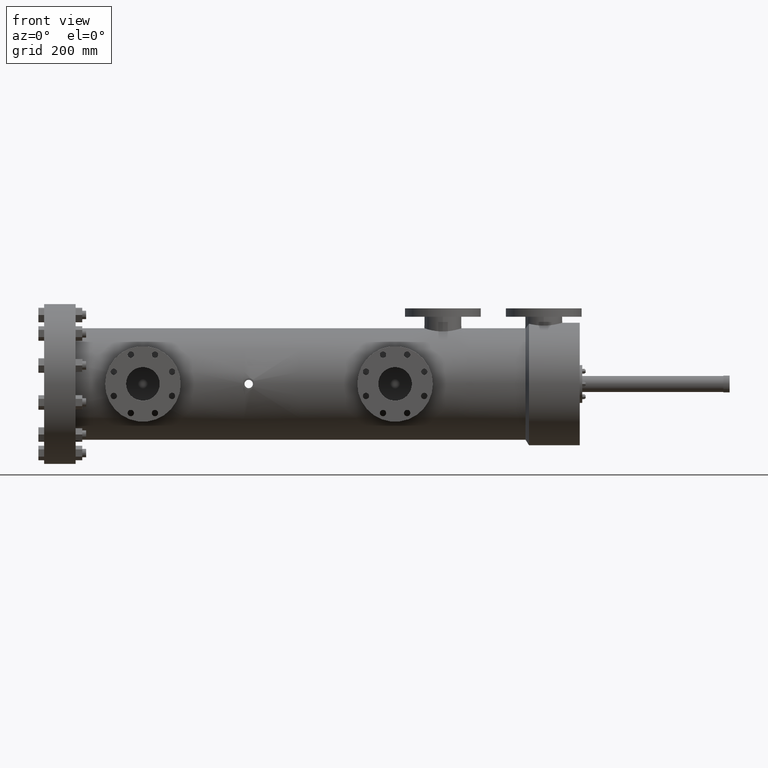
[diagram: clean part render]
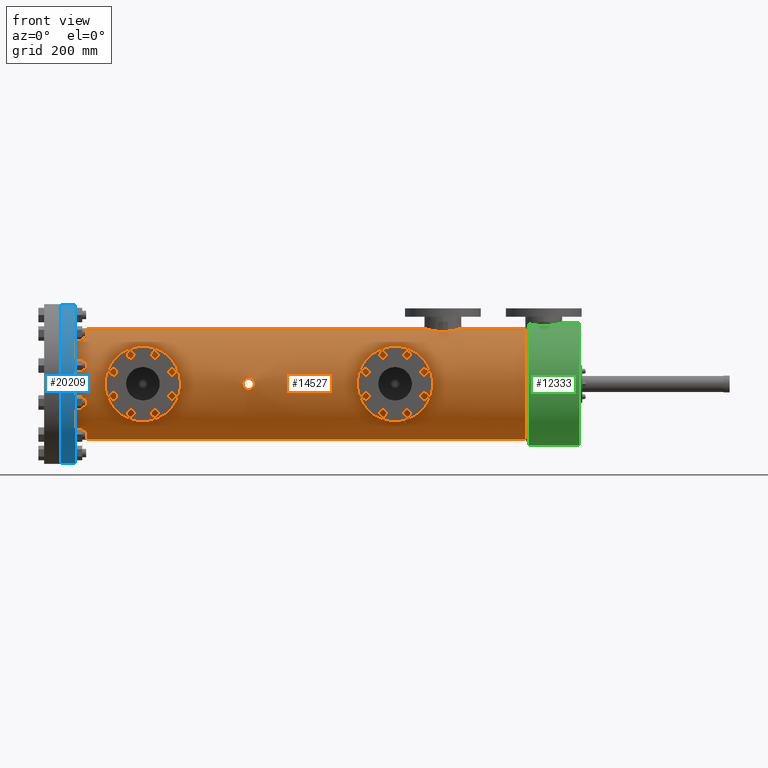
[diagram: same view with three faces highlighted in distinct colors, each labeled with its STEP entity id]
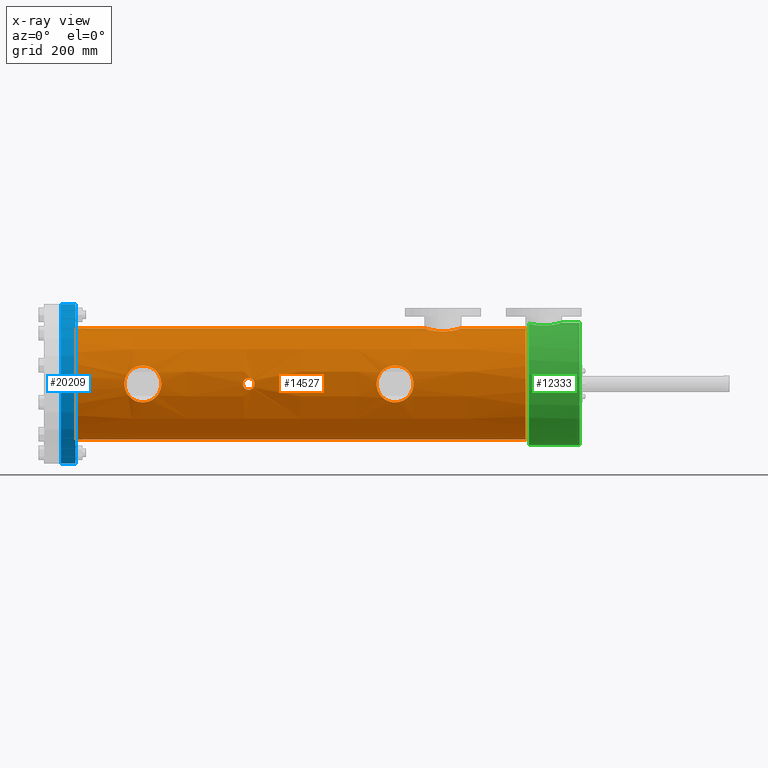
[diagram: x-ray of the same camera — body ghosted, the three highlighted faces saturated]
A machine part, front view with three faces highlighted in distinct colors.
The next image is the same camera in x-ray (body ghosted, the three faces saturated) — at least one of them is partly hidden behind the body in this view.
Their STEP definitions:

[orange] entity #14527 — the highlighted conical surface has half-angle 0.002 deg.
#7 = CARTESIAN_POINT ( 'NONE',  ( 24.57778403570085857, -6.593531232366399486, -0.6523720308318534666 ) ) ;
#29 = CARTESIAN_POINT ( 'NONE',  ( 49.40381689851638924, -0.9771307260789784399, 6.555668912862927300 ) ) ;
#82 = CARTESIAN_POINT ( 'NONE',  ( 24.42351707628997559, -6.589566534608594317, -0.6911578019383319837 ) ) ;
#174 = CARTESIAN_POINT ( 'NONE',  ( 49.03471811886219456, -1.503098057623105444, 6.454213645035475899 ) ) ;
#190 = CARTESIAN_POINT ( 'NONE',  ( 42.81115379189681391, -6.342485163737230813, -1.919192776473823248 ) ) ;
#289 = CARTESIAN_POINT ( 'NONE',  ( 40.32006991345621572, -6.411112524431372250, -1.675390423414125030 ) ) ;
#610 = CARTESIAN_POINT ( 'NONE',  ( 25.02858938482452089, -6.625738516091714381, 8.533286434450971265E-17 ) ) ;
#613 = CARTESIAN_POINT ( 'NONE',  ( 10.45945407832693874, -6.380173412047850157, 1.785373495727251791 ) ) ;
#685 = CARTESIAN_POINT ( 'NONE',  ( 10.86427965921850181, -6.311495983700081247, 2.014428084861917601 ) ) ;
#693 = CARTESIAN_POINT ( 'NONE',  ( 47.28550213708135885, -2.192330774758306067, 6.253497749905414516 ) ) ;
#757 = CARTESIAN_POINT ( 'NONE',  ( 24.99296129986059967, -6.622062024450540818, 0.2246261373467414446 ) ) ;
#758 = CARTESIAN_POINT ( 'NONE',  ( 9.558923983247167300, -6.620385264361994260, 0.2525530671773175695 ) ) ;
#769 = CARTESIAN_POINT ( 'NONE',  ( 45.46114843363449154, -0.9752207494519289366, 6.554742442791095414 ) ) ;
#834 = CARTESIAN_POINT ( 'NONE',  ( 23.72677807074798650, -6.616603256643412756, 0.3488756883547678989 ) ) ;
#904 = AXIS2_PLACEMENT_3D ( 'NONE', #8131, #20165, #16820 ) ;
#910 = VERTEX_POINT ( 'NONE', #6817 ) ;
#912 = CARTESIAN_POINT ( 'NONE',  ( 46.32700048018152472, -1.904628699726007124, 6.347535184019151622 ) ) ;
#981 = CARTESIAN_POINT ( 'NONE',  ( 24.35423443110684971, -6.588962576824731521, 0.6968611296968273416 ) ) ;
#1052 = CARTESIAN_POINT ( 'NONE',  ( 24.24055321382593675, -6.589438003869542371, 0.6923642120659863064 ) ) ;
#1129 = CARTESIAN_POINT ( 'NONE',  ( 23.76486634535190490, -6.613267434716008530, 0.4059294853928557822 ) ) ;
#1222 = VERTEX_POINT ( 'NONE', #17909 ) ;
#1306 = B_SPLINE_CURVE_WITH_KNOTS ( 'NONE', 3,
 ( #19602, #5697, #21261, #14384, #7771, #11153, #6136, #16391, #4392, #2448, #769, #2661, #5986, #19824, #11079, #21412, #11300, #16169, #14686, #9541, #7559, #9466, #16242, #912, #14608, #18132, #14534, #21482, #12723, #18207, #693, #4095, #4166, #2374 ),
 .UNSPECIFIED., .F., .F.,
 ( 4, 2, 2, 2, 2, 2, 2, 2, 2, 2, 2, 2, 2, 2, 2, 2, 4 ),
 ( 0.3043199584123445489, 0.3098110437029109043, 0.3125565863481940543, 0.3153021289934772042, 0.3262842995746098596, 0.3317753848651761595, 0.3345209275104594759, 0.3372664701557427924, 0.3482486407368757253, 0.3509941833821588197, 0.3537397260274418587, 0.3592308113180085472, 0.3702129818991413135, 0.3811951524802741353, 0.3866862377708408793, 0.3894317804161242513, 0.3921773230614075678 ),
 .UNSPECIFIED. ) ;
#1341 = CARTESIAN_POINT ( 'NONE',  ( 39.57409434024465611, -6.616634925263780609, -0.3602518616189501199 ) ) ;
#1365 = CARTESIAN_POINT ( 'NONE',  ( 42.71711669831807967, -6.326024936799920617, 1.973521948892208444 ) ) ;
#1402 = CARTESIAN_POINT ( 'NONE',  ( 12.03082381747364771, -6.255469065014710672, -2.182505758670298501 ) ) ;
#1414 = CARTESIAN_POINT ( 'NONE',  ( 39.99662313928737944, -6.490086867227164547, -1.342343493013568256 ) ) ;
#1435 = CARTESIAN_POINT ( 'NONE',  ( 43.83221410706340748, -6.592074760090215868, 0.6755919267532425332 ) ) ;
#1500 = CARTESIAN_POINT ( 'NONE',  ( 24.85704107938171248, -6.609813084078645318, -0.4601447491501997056 ) ) ;
#1502 = CARTESIAN_POINT ( 'NONE',  ( 12.90322812501939076, -6.357382864021940527, 1.864901298520327932 ) ) ;
#1505 = CARTESIAN_POINT ( 'NONE',  ( 43.90977911212269191, -6.617081006315929770, 0.3604833681119781752 ) ) ;
#1536 = EDGE_CURVE ( 'NONE', #9648, #15167, #14411, .T. ) ;
#1577 = CARTESIAN_POINT ( 'NONE',  ( 24.10792356768721945, -6.592716968800451660, -0.6603308572606709781 ) ) ;
#1578 = CARTESIAN_POINT ( 'NONE',  ( 13.93836132703422948, -6.625282293406211664, 0.03641069868614398714 ) ) ;
#1582 = CARTESIAN_POINT ( 'NONE',  ( 42.20685688377896128, -6.268884776958242533, 2.147304253671225460 ) ) ;
#1632 = CARTESIAN_POINT ( 'NONE',  ( 39.74177686851581370, -6.563611773761150125, -0.9102265881666634639 ) ) ;
#1651 = CARTESIAN_POINT ( 'NONE',  ( 23.82346246825409608, -6.608497735979110388, -0.4772520701212923377 ) ) ;
#1652 = CARTESIAN_POINT ( 'NONE',  ( 11.45254243782086512, -6.256922347100519310, 2.178064615704380369 ) ) ;
#1727 = CARTESIAN_POINT ( 'NONE',  ( 24.35496283482275715, -6.588964928213800754, -0.6968391813988931149 ) ) ;
#1810 = CARTESIAN_POINT ( 'NONE',  ( 24.08639893934638465, -6.593485238255767378, -0.6526300389961683379 ) ) ;
#1811 = CARTESIAN_POINT ( 'NONE',  ( 12.51938069925449071, -6.298273535151328595, 2.055765860094336261 ) ) ;
#1911 = LINE ( 'NONE', #2619, #13823 ) ;
#1920 = CARTESIAN_POINT ( 'NONE',  ( 49.23687026982493364, -1.251504913839311950, 6.507554030366207165 ) ) ;
#2056 = B_SPLINE_CURVE_WITH_KNOTS ( 'NONE', 3,
 ( #11345, #21747, #20599, #13577 ),
 .UNSPECIFIED., .F., .F.,
 ( 4, 4 ),
 ( 0.009438358998020352983, 0.01887555255040373678 ),
 .UNSPECIFIED. ) ;
#2109 = CARTESIAN_POINT ( 'NONE',  ( 3.750000000603466610, 3.496765431890256920E-14, 0.0000000000000000000 ) ) ;
#2212 = CARTESIAN_POINT ( 'NONE',  ( 11.34514714687760772, -6.262799676072774879, 2.161098870160734542 ) ) ;
#2374 = CARTESIAN_POINT ( 'NONE',  ( 47.43100000000000449, -2.196850393700787940, 6.251917491755816236 ) ) ;
#2448 = CARTESIAN_POINT ( 'NONE',  ( 45.43032682566519753, -0.9102762073996190084, 6.564098384538864295 ) ) ;
#2462 = CARTESIAN_POINT ( 'NONE',  ( 42.90409681698773170, -6.358827581901664416, -1.864360996740469734 ) ) ;
#2511 = CARTESIAN_POINT ( 'NONE',  ( 10.23892751292866521, -6.428318762392347452, 1.603024678726763019 ) ) ;
#2545 = VECTOR ( 'NONE', #6820, 39.37007874015748854 ) ;
#2583 = CARTESIAN_POINT ( 'NONE',  ( 23.63935721386400601, -6.625207008569859113, 0.09099918383285136858 ) ) ;
#2619 = CARTESIAN_POINT ( 'NONE',  ( 3.750000000603466610, 3.577896606663461051E-14, 6.624863171135633166 ) ) ;
#2661 = CARTESIAN_POINT ( 'NONE',  ( 45.51239326424130383, -1.070702857307938460, 6.539588047830070749 ) ) ;
#2727 = CARTESIAN_POINT ( 'NONE',  ( 23.92535920755519996, -6.601438507232701092, 0.5665538305444391964 ) ) ;
#2795 = CARTESIAN_POINT ( 'NONE',  ( 23.63488859746746584, -6.625681182923028878, -2.534743554497557797E-17 ) ) ;
#2869 = CARTESIAN_POINT ( 'NONE',  ( 24.69996470970340496, -6.599232286489488786, 0.5920515381954353229 ) ) ;
#2877 = ORIENTED_EDGE ( 'NONE', *, *, #3874, .F. ) ;
#2955 = EDGE_CURVE ( 'NONE', #15699, #11445, #15745, .T. ) ;
#3045 = B_SPLINE_CURVE_WITH_KNOTS ( 'NONE', 3,
 ( #19953, #4751, #22266, #18787, #4899, #22194, #13664, #11934, #15243, #10267, #3303, #8506, #18644, #6633, #6786, #10113, #13589, #15184, #3086, #15387, #20311, #20453, #11726, #5050, #3230, #20386, #17107, #18719, #18870, #8272, #3158, #16823, #22343, #4820, #8206, #10042, #6484, #15313, #17037, #6705, #1341, #22052, #9974, #13438, #22129, #1632, #8424, #13749, #15102, #11794, #1414, #13512, #15535, #20917, #6858, #289, #15614, #13826, #13909, #3460, #3607, #17268, #12304, #20763, #6934, #10575, #20987, #3373, #19023, #10420, #18951, #8590, #5270 ),
 .UNSPECIFIED., .F., .F.,
 ( 4, 2, 2, 2, 2, 2, 2, 2, 2, 2, 2, 2, 2, 2, 2, 2, 2, 2, 1, 2, 2, 2, 2, 2, 2, 2, 2, 2, 2, 2, 2, 2, 2, 2, 2, 2, 4 ),
 ( 0.2176716465761849295, 0.2204167350690646454, 0.2231618235619443613, 0.2286520005477044593, 0.2396323545192252935, 0.2423774430121050372, 0.2451225315049848086, 0.2506127084907442959, 0.2561028854765038387, 0.2588479739693835824, 0.2615930624622633260, 0.2725734164337828558, 0.2753185049266625439, 0.2780635934195422321, 0.2835537704053016084, 0.2945341243768200834, 0.2972792128696997160, 0.3000243013625792932, 0.3055144783483384474, 0.3110046553340975461, 0.3137497438269770678, 0.3164948323198566449, 0.3274751862913746203, 0.3302202747842543085, 0.3329653632771340521, 0.3384555402628933729, 0.3494358942344124586, 0.3521809827272924798, 0.3549260712201725010, 0.3604162482059324879, 0.3659064251916924748, 0.3686515136845724405, 0.3713966021774524062, 0.3823769561489717694, 0.3878671331347314233, 0.3906122216276110004, 0.3933573101204904665 ),
 .UNSPECIFIED. ) ;
#3071 = CARTESIAN_POINT ( 'NONE',  ( 10.46051535993287196, -6.379960346835520824, -1.786133588294417596 ) ) ;
#3086 = CARTESIAN_POINT ( 'NONE',  ( 40.29146491660462459, -6.417518355282552101, 1.650700301265083825 ) ) ;
#3111 = CARTESIAN_POINT ( 'NONE',  ( 42.34791927896860386, -6.280943476179074558, 2.111806152255331970 ) ) ;
#3141 = CARTESIAN_POINT ( 'NONE',  ( 12.90461968627995049, -6.357637551070552284, -1.864033140223286589 ) ) ;
#3158 = CARTESIAN_POINT ( 'NONE',  ( 39.61596358125650141, -6.602986985379964757, 0.5738012582092921754 ) ) ;
#3183 = CARTESIAN_POINT ( 'NONE',  ( 43.92043445682851655, -6.620590650405354438, 0.2892454236536487477 ) ) ;
#3230 = CARTESIAN_POINT ( 'NONE',  ( 39.87725073870154091, -6.523611387854896471, 1.162745897945345108 ) ) ;
#3254 = CARTESIAN_POINT ( 'NONE',  ( 43.48266513357024365, -6.489646301206455803, 1.340086693578517396 ) ) ;
#3261 = CARTESIAN_POINT ( 'NONE',  ( 13.78344611514557450, -6.575519475637503497, -0.8111360351790408707 ) ) ;
#3303 = CARTESIAN_POINT ( 'NONE',  ( 40.83020399326502314, -6.317619756269740705, 1.999242095802498786 ) ) ;
#3326 = CARTESIAN_POINT ( 'NONE',  ( 24.95721283238850319, -6.618600580275539436, -0.3080705049362044701 ) ) ;
#3329 = CARTESIAN_POINT ( 'NONE',  ( 41.74151093333344420, -6.251669411574623858, 2.196850393700790161 ) ) ;
#3373 = CARTESIAN_POINT ( 'NONE',  ( 41.45127451902514082, -6.257971705429326903, -2.178809860162269629 ) ) ;
#3397 = CARTESIAN_POINT ( 'NONE',  ( 24.37805370167574637, -6.589088265165744751, -0.6956847502148280071 ) ) ;
#3399 = CARTESIAN_POINT ( 'NONE',  ( 13.93744840196192314, -6.624979377985630968, 0.07304215544909645197 ) ) ;
#3411 = CARTESIAN_POINT ( 'NONE',  ( 3.750000000603466610, 3.496765431890256920E-14, -6.624863171135633166 ) ) ;
#3427 = CARTESIAN_POINT ( 'NONE',  ( 49.08268980787863001, -1.450250477124189530, 6.466337226585761044 ) ) ;
#3460 = CARTESIAN_POINT ( 'NONE',  ( 40.63939371433932735, -6.347720830459412156, -1.901739992262178935 ) ) ;
#3479 = CARTESIAN_POINT ( 'NONE',  ( 13.71367204644349513, -6.553985452985163107, 0.9785289002875180442 ) ) ;
#3488 = CARTESIAN_POINT ( 'NONE',  ( 13.83244250839591949, -6.590906649186978328, -0.6748879755944569014 ) ) ;
#3549 = CARTESIAN_POINT ( 'NONE',  ( 25.02303233725506004, -6.625155769987754795, -0.09073575997298016782 ) ) ;
#3607 = CARTESIAN_POINT ( 'NONE',  ( 40.73401389580630649, -6.332211571818668006, -1.952532406707937263 ) ) ;
#3870 = CARTESIAN_POINT ( 'NONE',  ( 49.61349498607743413, -0.2891209876645887134, 6.621951069706899062 ) ) ;
#3874 = EDGE_CURVE ( 'NONE', #20388, #18401, #19239, .T. ) ;
#3931 = CARTESIAN_POINT ( 'NONE',  ( 9.741433929515185497, -6.562470391623232757, 0.9094722981151629471 ) ) ;
#4013 = CARTESIAN_POINT ( 'NONE',  ( 10.08628248841689690, -6.465001066704139987, 1.451513589132652715 ) ) ;
#4082 = CARTESIAN_POINT ( 'NONE',  ( 10.29220380374715482, -6.416077101422848372, 1.651349115121549804 ) ) ;
#4095 = CARTESIAN_POINT ( 'NONE',  ( 47.35841083437185262, -2.195954158697229985, 6.252229475730993968 ) ) ;
#4111 = CARTESIAN_POINT ( 'NONE',  ( 13.08476586987939250, -6.392047385643293111, -1.744307501077701383 ) ) ;
#4166 = CARTESIAN_POINT ( 'NONE',  ( 47.39475793748781740, -2.196850393700787496, 6.251915911487759381 ) ) ;
#4225 = CARTESIAN_POINT ( 'NONE',  ( 57.26579621931563224, -0.3715430532434045308, 6.616641285041886533 ) ) ;
#4230 = CARTESIAN_POINT ( 'NONE',  ( 9.788619891035152065, -6.548241644443676179, 1.006814481423935925 ) ) ;
#4306 = CARTESIAN_POINT ( 'NONE',  ( 24.17341553804603649, -6.590820125784755845, 0.6790101616395357587 ) ) ;
#4328 = B_SPLINE_CURVE_WITH_KNOTS ( 'NONE', 3,
 ( #7672, #4884, #4662, #20234, #6317, #6474, #11638, #18546, #18709, #22040, #18402, #18475, #13351, #8045, #11712, #20155, #20301, #15171, #20374, #6395, #11781, #16882, #3071, #9888, #9822, #15093, #22182, #13427, #21896, #4809, #11569, #16954, #13276, #6620, #1402, #8119, #6547, #21967, #10032, #4737, #10099, #16809, #13499, #8192, #8261, #3141, #9961, #4111, #14230, #17056, #13062, #6555, #18803, #13992, #17888, #11889, #6890, #3261, #10142, #5157, #3488, #22225, #13614, #22152, #20412, #22296 ),
 .UNSPECIFIED., .F., .F.,
 ( 4, 2, 2, 2, 2, 2, 2, 2, 2, 2, 2, 2, 2, 2, 2, 2, 2, 2, 2, 2, 2, 2, 2, 2, 2, 2, 2, 2, 2, 2, 2, 2, 4 ),
 ( 0.3043287578065909660, 0.3098214058298005003, 0.3125677298414052951, 0.3153140538530100345, 0.3262993498994291031, 0.3317919979226386373, 0.3345383219342433767, 0.3372846459458481161, 0.3482699419922668516, 0.3510162660038716465, 0.3537625900154763858, 0.3592552380386859201, 0.3702405340851049886, 0.3812258301315240572, 0.3867184781547334804, 0.3894648021663381088, 0.3922111261779427371, 0.4031964222243618057, 0.4059427462359666006, 0.4086890702475713399, 0.4141817182707807077, 0.4196743662939900754, 0.4224206903055947593, 0.4251670143171994432, 0.4361523103636179011, 0.4416449583868271023, 0.4443912823984316751, 0.4471376064100363035, 0.4581229024564544283, 0.4608692264680589457, 0.4636155504796635185, 0.4691081985028725532, 0.4800934945492906225 ),
 .UNSPECIFIED. ) ;
#4378 = CARTESIAN_POINT ( 'NONE',  ( 24.02273317860783663, -6.596058514400312767, 0.6262433461985528194 ) ) ;
#4392 = CARTESIAN_POINT ( 'NONE',  ( 45.34765549667208973, -0.7116209809908941031, 6.589606392026295723 ) ) ;
#4453 = CARTESIAN_POINT ( 'NONE',  ( 23.87174920392294553, -6.604957415429876910, 0.5239542214970368539 ) ) ;
#4527 = CARTESIAN_POINT ( 'NONE',  ( 24.75595753402595989, -6.602598965349692151, 0.5533172723929095094 ) ) ;
#4577 = AXIS2_PLACEMENT_3D ( 'NONE', #16246, #5624, #12726 ) ;
#4605 = CARTESIAN_POINT ( 'NONE',  ( 24.28575765744936987, -6.588963175306786546, 0.6968286870151126910 ) ) ;
#4662 = CARTESIAN_POINT ( 'NONE',  ( 9.548199347331248532, -6.623925690311266656, -0.1440723627000487228 ) ) ;
#4737 = CARTESIAN_POINT ( 'NONE',  ( 12.45275782136986287, -6.290351881888238239, -2.079790167152564262 ) ) ;
#4751 = CARTESIAN_POINT ( 'NONE',  ( 41.70539429412900034, -6.251667836768550757, 2.196850393700789716 ) ) ;
#4809 = CARTESIAN_POINT ( 'NONE',  ( 11.56051976159447037, -6.252869103330566780, -2.189683024927041810 ) ) ;
#4820 = CARTESIAN_POINT ( 'NONE',  ( 39.56330643513219059, -6.620176130447741336, 0.2879302586994890722 ) ) ;
#4848 = CARTESIAN_POINT ( 'NONE',  ( 43.46158480881042863, -6.484016967270158638, -1.367037952014923619 ) ) ;
#4884 = CARTESIAN_POINT ( 'NONE',  ( 9.544660539632655372, -6.625101548162556142, -0.07207946487326973017 ) ) ;
#4899 = CARTESIAN_POINT ( 'NONE',  ( 41.56018720314152404, -6.254185355072642949, 2.189658287000880499 ) ) ;
#4917 = CARTESIAN_POINT ( 'NONE',  ( 24.96693457370823666, -6.619529859221225720, -0.2874760759959974488 ) ) ;
#4924 = CARTESIAN_POINT ( 'NONE',  ( 43.82072078958276506, -6.588435444459888934, 0.7101778491443093699 ) ) ;
#4989 = CARTESIAN_POINT ( 'NONE',  ( 13.82163492379610759, -6.587462825164991820, 0.7102512796314079946 ) ) ;
#4995 = CARTESIAN_POINT ( 'NONE',  ( 43.39210917951668023, -6.465818718316996616, 1.451487526679746898 ) ) ;
#5050 = CARTESIAN_POINT ( 'NONE',  ( 39.89645881080959811, -6.518145261556920644, 1.192983809184233079 ) ) ;
#5065 = CARTESIAN_POINT ( 'NONE',  ( 3.750000000603466610, 3.577896606663461051E-14, 6.624863171135633166 ) ) ;
#5071 = CARTESIAN_POINT ( 'NONE',  ( 25.00622114083958181, -6.623416403171534128, -0.1810655760361977451 ) ) ;
#5072 = CARTESIAN_POINT ( 'NONE',  ( 12.34864033900388058, -6.279711710808576264, 2.111597210191546115 ) ) ;
#5077 = CARTESIAN_POINT ( 'NONE',  ( 43.79630267422923140, -6.580769232964311044, -0.7780098189012546461 ) ) ;
#5142 = CARTESIAN_POINT ( 'NONE',  ( 24.51255909512714837, -6.591414915615373182, -0.6733671305166264442 ) ) ;
#5143 = CARTESIAN_POINT ( 'NONE',  ( 13.39214656424395855, -6.464562894794788406, 1.451452292800394783 ) ) ;
#5149 = CARTESIAN_POINT ( 'NONE',  ( 43.08309057884435589, -6.392970555335234728, 1.745609962434204077 ) ) ;
#5157 = CARTESIAN_POINT ( 'NONE',  ( 13.82095826917923986, -6.587269234152409503, -0.7094777792680146966 ) ) ;
#5170 = CARTESIAN_POINT ( 'NONE',  ( 48.77381207144431130, -1.744652682681485656, 6.393474836463997946 ) ) ;
#5219 = CARTESIAN_POINT ( 'NONE',  ( 23.64053733559972770, -6.625089316710099041, -0.09144833260444090728 ) ) ;
#5270 = CARTESIAN_POINT ( 'NONE',  ( 41.74151093333344420, -6.251669411574624746, -2.196850393700790161 ) ) ;
#5290 = CARTESIAN_POINT ( 'NONE',  ( 13.90967022201493108, -6.615809419552356907, 0.3611264934354779799 ) ) ;
#5624 = DIRECTION ( 'NONE',  ( 1.000000000000000000, 0.0000000000000000000, 0.0000000000000000000 ) ) ;
#5687 = FACE_OUTER_BOUND ( 'NONE', #16901, .T. ) ;
#5697 = CARTESIAN_POINT ( 'NONE',  ( 45.23414960629921922, -0.07205929630546040188, 6.626569719462704455 ) ) ;
#5827 = CARTESIAN_POINT ( 'NONE',  ( 11.03095352651082450, -6.289201828074034495, 2.083774667499414868 ) ) ;
#5836 = EDGE_CURVE ( 'NONE', #5878, #10738, #15311, .T. ) ;
#5851 = CARTESIAN_POINT ( 'NONE',  ( 42.84238100084748879, -6.347831404354749019, -1.901455483962477544 ) ) ;
#5868 = CARTESIAN_POINT ( 'NONE',  ( 3.750000000603466610, 3.577910086953825701E-14, 6.624863171135633166 ) ) ;
#5878 = VERTEX_POINT ( 'NONE', #7052 ) ;
#5897 = CARTESIAN_POINT ( 'NONE',  ( 10.83111171407014517, -6.316193978391050123, 1.999657323936574471 ) ) ;
#5986 = CARTESIAN_POINT ( 'NONE',  ( 45.53029711411372205, -1.102167435319924893, 6.534354766565573236 ) ) ;
#6119 = CARTESIAN_POINT ( 'NONE',  ( 23.70540288840218679, -6.618616577760176867, 0.3088268691913752528 ) ) ;
#6136 = CARTESIAN_POINT ( 'NONE',  ( 45.26974463245034030, -0.3955422978333099637, 6.614852459279567221 ) ) ;
#6194 = CARTESIAN_POINT ( 'NONE',  ( 24.55589411547753897, -6.592647376136286042, 0.6614118780354867333 ) ) ;
#6317 = CARTESIAN_POINT ( 'NONE',  ( 9.563299484927245686, -6.618943163465818458, -0.2878621617077302131 ) ) ;
#6334 = CARTESIAN_POINT ( 'NONE',  ( 23.65265210241852500, -6.623835740864350008, 0.1579863765597978031 ) ) ;
#6395 = CARTESIAN_POINT ( 'NONE',  ( 10.29289431774609298, -6.415921084076980030, -1.651955357288932724 ) ) ;
#6460 = AXIS2_PLACEMENT_3D ( 'NONE', #2109, #19422, #10654 ) ;
#6472 = ORIENTED_EDGE ( 'NONE', *, *, #5836, .T. ) ;
#6474 = CARTESIAN_POINT ( 'NONE',  ( 9.574000858198093766, -6.615429634281063898, -0.3596801527713772706 ) ) ;
#6484 = CARTESIAN_POINT ( 'NONE',  ( 39.54112723617753034, -6.627509496825817692, -0.0002404944215809121121 ) ) ;
#6547 = CARTESIAN_POINT ( 'NONE',  ( 12.24326539617703702, -6.270392034597910502, -2.139091657411045233 ) ) ;
#6555 = CARTESIAN_POINT ( 'NONE',  ( 13.46182993006181228, -6.482821011091593810, -1.366726781290404036 ) ) ;
#6584 = CARTESIAN_POINT ( 'NONE',  ( 43.93385137612636271, -6.625022218867309576, 0.1453064872884478054 ) ) ;
#6620 = CARTESIAN_POINT ( 'NONE',  ( 11.88748994781560064, -6.250390456536944583, -2.196785538956048445 ) ) ;
#6633 = CARTESIAN_POINT ( 'NONE',  ( 40.63851892298951185, -6.347872866871412612, 1.901232902504273570 ) ) ;
#6644 = ORIENTED_EDGE ( 'NONE', *, *, #14197, .F. ) ;
#6647 = CARTESIAN_POINT ( 'NONE',  ( 23.76560565684397019, -6.613203956107442494, -0.4069661483562111437 ) ) ;
#6653 = CARTESIAN_POINT ( 'NONE',  ( 43.08398614024823559, -6.393167725119522693, -1.744877580066145573 ) ) ;
#6705 = CARTESIAN_POINT ( 'NONE',  ( 39.56335108804695722, -6.620161440692852395, -0.2882633868149108158 ) ) ;
#6718 = DIRECTION ( 'NONE',  ( 0.9999999991538588429, 5.037873415354562398E-21, 4.113735828862759687E-05 ) ) ;
#6720 = ORIENTED_EDGE ( 'NONE', *, *, #15720, .F. ) ;
#6725 = CARTESIAN_POINT ( 'NONE',  ( 23.85556159211286698, -6.606107758442827382, -0.5092834641024349684 ) ) ;
#6727 = CARTESIAN_POINT ( 'NONE',  ( 11.59771097530017236, -6.251587662152419789, 2.193353436717868643 ) ) ;
#6732 = CARTESIAN_POINT ( 'NONE',  ( 43.19317186046559698, -6.417315576233161067, 1.655012060850734379 ) ) ;
#6786 = CARTESIAN_POINT ( 'NONE',  ( 40.57741282782665593, -6.358811648053891652, 1.864431728288768575 ) ) ;
#6805 = CARTESIAN_POINT ( 'NONE',  ( 25.02858938482452089, -6.625738516091714381, 8.533286434450971265E-17 ) ) ;
#6806 = CARTESIAN_POINT ( 'NONE',  ( 13.93836132703422948, -6.625282293406212553, 2.691808859561526713E-16 ) ) ;
#6817 = CARTESIAN_POINT ( 'NONE',  ( 13.93836132703422948, -6.625282293406212553, 2.691808859561526713E-16 ) ) ;
#6818 = EDGE_LOOP ( 'NONE', ( #6720, #10899 ) ) ;
#6820 = DIRECTION ( 'NONE',  ( 0.9999999991538588429, 0.0000000000000000000, -4.113735828862759687E-05 ) ) ;
#6858 = CARTESIAN_POINT ( 'NONE',  ( 40.29294837783822913, -6.417183384600608775, -1.652001618048676512 ) ) ;
#6878 = CARTESIAN_POINT ( 'NONE',  ( 24.68141228771573381, -6.598141664986682642, -0.6044750894186715628 ) ) ;
#6884 = CARTESIAN_POINT ( 'NONE',  ( 43.83234665402957120, -6.592116832371540447, -0.6751791920190369778 ) ) ;
#6890 = CARTESIAN_POINT ( 'NONE',  ( 13.71444818341033312, -6.554221281687879319, -0.9768823323815394311 ) ) ;
#6934 = CARTESIAN_POINT ( 'NONE',  ( 41.03115500308842911, -6.290476773714772207, -2.083851557508009211 ) ) ;
#6942 = CARTESIAN_POINT ( 'NONE',  ( 42.20710410904333543, -6.268903155965582563, -2.147250642490619477 ) ) ;
#6953 = CARTESIAN_POINT ( 'NONE',  ( 24.88579612679562914, -6.612191433074223745, -0.4250861692100580957 ) ) ;
#6954 = CARTESIAN_POINT ( 'NONE',  ( 13.93382332935983747, -6.623778533312912664, 0.1457493767674739593 ) ) ;
#6975 = CARTESIAN_POINT ( 'NONE',  ( 47.43100000000000449, -2.196850393700787940, 6.251917491755816236 ) ) ;
#7023 = CARTESIAN_POINT ( 'NONE',  ( 12.81041693124038083, -6.341071758189249508, 1.919601964331243860 ) ) ;
#7052 = CARTESIAN_POINT ( 'NONE',  ( 57.26579621931563224, 3.496765431890256920E-14, -6.627064669620645887 ) ) ;
#7123 = CARTESIAN_POINT ( 'NONE',  ( 49.52187198244510569, -0.6750731943734615825, 6.592363562361454044 ) ) ;
#7458 = CARTESIAN_POINT ( 'NONE',  ( 23.63488859746746584, -6.625681182923028878, -2.534743554497557797E-17 ) ) ;
#7496 = B_SPLINE_CURVE_WITH_KNOTS ( 'NONE', 3,
 ( #610, #17975, #19736, #9381, #21469, #11144, #757, #12857, #18052, #9079, #13002, #21616, #14965, #12930, #13067, #4527, #16532, #2869, #18191, #11438, #14823, #6194, #14897, #18262, #21759, #11214, #981, #4605, #1052, #4306, #9762, #11508, #9530, #4378, #7687, #2727, #7833, #4453, #16681, #7913, #19812, #9606, #1129, #834, #6119, #20027, #9683, #14674, #6334, #2583, #13138, #2795 ),
 .UNSPECIFIED., .F., .F.,
 ( 4, 2, 2, 2, 2, 2, 2, 2, 2, 2, 2, 2, 2, 2, 2, 2, 2, 2, 2, 2, 2, 2, 2, 2, 2, 4 ),
 ( 0.04479748898031260529, 0.04652823266807390445, 0.04825897635583520362, 0.05172046373135786440, 0.05345120741911912887, 0.05518195110688040028, 0.05864343848240275575, 0.06037418217016381206, 0.06210492585792487530, 0.06383566954568592466, 0.06556641323344698791, 0.06902790060896911439, 0.07075864429673017764, 0.07248938798449122700, 0.07595087536001335349, 0.07768161904777441673, 0.07941236273553547997, 0.08287385011105759258, 0.08460459379881879460, 0.08633533748657998275, 0.08806608117434117089, 0.08979682486210237291, 0.09325831223762477695, 0.09498905592538603448, 0.09671979961314729202, 0.1001812869886697516 ),
 .UNSPECIFIED. ) ;
#7516 = ORIENTED_EDGE ( 'NONE', *, *, #1536, .F. ) ;
#7547 = CARTESIAN_POINT ( 'NONE',  ( 10.63899437139961890, -6.346500870075810319, 1.901513165396624627 ) ) ;
#7559 = CARTESIAN_POINT ( 'NONE',  ( 46.00923601578463717, -1.675118322242994617, 6.411425753324983212 ) ) ;
#7621 = CARTESIAN_POINT ( 'NONE',  ( 10.73377024174784289, -6.330958625785372718, 1.952407797984023308 ) ) ;
#7672 = CARTESIAN_POINT ( 'NONE',  ( 9.544660539632655372, -6.625101548162554366, -9.427141743641528412E-21 ) ) ;
#7687 = CARTESIAN_POINT ( 'NONE',  ( 23.98262908288615591, -6.598080422595629990, 0.6048404286326640733 ) ) ;
#7771 = CARTESIAN_POINT ( 'NONE',  ( 45.25277765375685135, -0.2877782535098691308, 6.620416287988600601 ) ) ;
#7833 = CARTESIAN_POINT ( 'NONE',  ( 23.90692401028852032, -6.602602426164002836, 0.5528570001484461871 ) ) ;
#7913 = CARTESIAN_POINT ( 'NONE',  ( 23.82286330080883374, -6.608543848538816157, 0.4766137454710438481 ) ) ;
#7981 = ORIENTED_EDGE ( 'NONE', *, *, #8320, .T. ) ;
#8045 = CARTESIAN_POINT ( 'NONE',  ( 9.878079302779354975, -6.522121008786474050, -1.164073741039660437 ) ) ;
#8119 = CARTESIAN_POINT ( 'NONE',  ( 12.20794444171114534, -6.267661595602806557, -2.147066962048278072 ) ) ;
#8131 = CARTESIAN_POINT ( 'NONE',  ( 57.26579621931563224, 3.496765431890256920E-14, 0.0000000000000000000 ) ) ;
#8192 = CARTESIAN_POINT ( 'NONE',  ( 12.81190875038301336, -6.341323470835456888, -1.918770787611900230 ) ) ;
#8206 = CARTESIAN_POINT ( 'NONE',  ( 39.55885045762841656, -6.621644505547851445, 0.2519033131741731935 ) ) ;
#8261 = CARTESIAN_POINT ( 'NONE',  ( 12.84306696491547761, -6.346662540151857712, -1.901056503188874869 ) ) ;
#8272 = CARTESIAN_POINT ( 'NONE',  ( 39.65794265504921157, -6.589442906405298395, 0.7109180777530441642 ) ) ;
#8299 = CARTESIAN_POINT ( 'NONE',  ( 43.54718459029891164, -6.507261219545051212, -1.251786550823028366 ) ) ;
#8320 = EDGE_CURVE ( 'NONE', #9648, #5878, #19031, .T. ) ;
#8367 = CARTESIAN_POINT ( 'NONE',  ( 24.55614252960209853, -6.592756281439689836, -0.6601229085498671045 ) ) ;
#8374 = CARTESIAN_POINT ( 'NONE',  ( 43.48379268370108264, -6.489949335289495913, -1.338615896954393980 ) ) ;
#8424 = CARTESIAN_POINT ( 'NONE',  ( 39.77268831726568266, -6.554261402517163049, -0.9752877925298308881 ) ) ;
#8447 = CARTESIAN_POINT ( 'NONE',  ( 24.15198249168667743, -6.591370123409086013, -0.6736599926749202716 ) ) ;
#8450 = CARTESIAN_POINT ( 'NONE',  ( 42.84313291196338724, -6.346942313985848294, 1.906152958814745890 ) ) ;
#8481 = CARTESIAN_POINT ( 'NONE',  ( 42.71637195406427168, -6.326955855473684665, -1.970009661379708454 ) ) ;
#8506 = CARTESIAN_POINT ( 'NONE',  ( 40.76514644414221777, -6.327328914573920216, 1.968289023718819752 ) ) ;
#8528 = CARTESIAN_POINT ( 'NONE',  ( 13.93111489657289681, -6.622881843702862703, 0.1819177060809873125 ) ) ;
#8554 = CARTESIAN_POINT ( 'NONE',  ( 47.89660676726339972, -2.147246541244567375, 6.269151944898454509 ) ) ;
#8590 = CARTESIAN_POINT ( 'NONE',  ( 41.70535038903883418, -6.251667834854146122, -2.196850393700791493 ) ) ;
#8608 = CARTESIAN_POINT ( 'NONE',  ( 23.77929304589925863, -6.612043428531708678, -0.4253484319426516502 ) ) ;
#8632 = CARTESIAN_POINT ( 'NONE',  ( 49.33636927094483582, -1.102816779711477180, 6.535449885815074467 ) ) ;
#8686 = CARTESIAN_POINT ( 'NONE',  ( 24.79170787291509015, -6.604993624875345581, -0.5239786989686771035 ) ) ;
#8687 = CARTESIAN_POINT ( 'NONE',  ( 12.71580272596258077, -6.325576654946085675, 1.970286141962328985 ) ) ;
#8711 = CARTESIAN_POINT ( 'NONE',  ( 49.17330850385867791, -1.338583939452503202, 6.490195304688610278 ) ) ;
#8764 = CARTESIAN_POINT ( 'NONE',  ( 10.40222862776544765, -6.391952332706583917, 1.742868037996699426 ) ) ;
#9013 = CARTESIAN_POINT ( 'NONE',  ( 49.62785039370077556, -0.1457226194613405190, 6.626750464706362642 ) ) ;
#9079 = CARTESIAN_POINT ( 'NONE',  ( 24.93535872688921629, -6.616570075327383726, 0.3489604284103137166 ) ) ;
#9092 = CARTESIAN_POINT ( 'NONE',  ( 49.57120038013391650, -0.5008741354296680770, 6.608170638736821090 ) ) ;
#9155 = CARTESIAN_POINT ( 'NONE',  ( 49.62785039370078977, 3.577935135807983371E-14, 6.626750464706363530 ) ) ;
#9247 = CARTESIAN_POINT ( 'NONE',  ( 49.62785039370078977, 3.577935135807983371E-14, 6.626750464706363530 ) ) ;
#9257 = B_SPLINE_CURVE_WITH_KNOTS ( 'NONE', 3,
 ( #6975, #10543, #10385, #8554, #20652, #10311, #22396, #14020, #15662, #19069, #17385, #12052, #17456, #13792, #15580, #5170, #18989, #174, #3427, #15502, #8711, #12276, #1920, #8632, #29, #20726, #15735, #12129, #7123, #19234, #9092, #3870, #9013, #9247 ),
 .UNSPECIFIED., .F., .F.,
 ( 4, 2, 2, 2, 2, 2, 2, 2, 2, 2, 2, 2, 2, 2, 2, 2, 4 ),
 ( 0.04070040931279731572, 0.05168876630209795486, 0.05443585554942326904, 0.05718294479674858322, 0.06267712329139922545, 0.06817130178604985380, 0.07091839103337517491, 0.07366548028070049603, 0.08465383727000287684, 0.09014801576465429622, 0.09289510501197979775, 0.09564219425930528540, 0.1066305512486077356, 0.1093776404959334037, 0.1121247297432590717, 0.1176189082379103801, 0.1286072652272130523 ),
 .UNSPECIFIED. ) ;
#9381 = CARTESIAN_POINT ( 'NONE',  ( 25.02300884675680592, -6.625153314243435787, 0.09093281782290847659 ) ) ;
#9382 = CARTESIAN_POINT ( 'NONE',  ( 9.726835635625910470, -6.566937124399228054, 0.8766532897306680283 ) ) ;
#9466 = CARTESIAN_POINT ( 'NONE',  ( 46.09227058296842472, -1.743297298904917358, 6.393357463867638479 ) ) ;
#9479 = CARTESIAN_POINT ( 'NONE',  ( 41.74151093333344420, -6.251669411574624746, -2.196850393700790161 ) ) ;
#9530 = CARTESIAN_POINT ( 'NONE',  ( 24.08569103262134803, -6.593511683428386227, 0.6523626948970764339 ) ) ;
#9541 = CARTESIAN_POINT ( 'NONE',  ( 45.98198406459943044, -1.651604839558249882, 6.417527310352026504 ) ) ;
#9587 = EDGE_CURVE ( 'NONE', #19444, #910, #4328, .T. ) ;
#9606 = CARTESIAN_POINT ( 'NONE',  ( 23.77862618837120223, -6.612099091064744805, 0.4244854076431920920 ) ) ;
#9648 = VERTEX_POINT ( 'NONE', #3411 ) ;
#9683 = CARTESIAN_POINT ( 'NONE',  ( 23.67155698667988872, -6.621923189773973206, 0.2242553983924101824 ) ) ;
#9762 = CARTESIAN_POINT ( 'NONE',  ( 24.15102793759562516, -6.591396482513879995, 0.6734016888514567922 ) ) ;
#9822 = CARTESIAN_POINT ( 'NONE',  ( 10.76397872687957147, -6.324905247193957081, -1.972722368463058373 ) ) ;
#9861 = VERTEX_POINT ( 'NONE', #9155 ) ;
#9888 = CARTESIAN_POINT ( 'NONE',  ( 10.63806305257704921, -6.345905547704297156, -1.904951242096678987 ) ) ;
#9908 = EDGE_CURVE ( 'NONE', #18401, #20388, #7496, .T. ) ;
#9961 = CARTESIAN_POINT ( 'NONE',  ( 12.93506790270313367, -6.363283891332675246, -1.844687735114759697 ) ) ;
#9974 = CARTESIAN_POINT ( 'NONE',  ( 39.61609044519189382, -6.602945925592297094, -0.5743178851818134811 ) ) ;
#9997 = CARTESIAN_POINT ( 'NONE',  ( 43.78307927294558510, -6.576648938603417704, 0.8120625622678406819 ) ) ;
#10032 = CARTESIAN_POINT ( 'NONE',  ( 12.34884009514578906, -6.279729990357937552, -2.111543238302564962 ) ) ;
#10042 = CARTESIAN_POINT ( 'NONE',  ( 39.54817883727341155, -6.625166808894775272, 0.1438314466838992445 ) ) ;
#10067 = CARTESIAN_POINT ( 'NONE',  ( 43.71403045372085217, -6.555341809592141189, -0.9777717868923178068 ) ) ;
#10099 = CARTESIAN_POINT ( 'NONE',  ( 12.52043046272822302, -6.298401496239644182, -2.055375702496100132 ) ) ;
#10113 = CARTESIAN_POINT ( 'NONE',  ( 40.45902774581920625, -6.381540547617166048, 1.785067769704467011 ) ) ;
#10132 = CARTESIAN_POINT ( 'NONE',  ( 24.24111081853629202, -6.589431171082954286, -0.6924285420636452359 ) ) ;
#10137 = CARTESIAN_POINT ( 'NONE',  ( 43.92388198201923899, -6.621675945194134272, -0.2899749049760118047 ) ) ;
#10142 = CARTESIAN_POINT ( 'NONE',  ( 13.79647494895174198, -6.579580419788146450, -0.7775492501090723874 ) ) ;
#10164 = EDGE_LOOP ( 'NONE', ( #2877, #22126 ) ) ;
#10205 = CARTESIAN_POINT ( 'NONE',  ( 23.70564649685366021, -6.618593054770089523, -0.3093881504889696710 ) ) ;
#10215 = CARTESIAN_POINT ( 'NONE',  ( 42.45156463456989826, -6.291518825137145221, 2.080190859005059512 ) ) ;
#10267 = CARTESIAN_POINT ( 'NONE',  ( 40.86332235839920912, -6.312924062919062607, 2.014012626492431846 ) ) ;
#10285 = CARTESIAN_POINT ( 'NONE',  ( 23.63488859746746584, -6.625681182923028878, -2.534743554497557797E-17 ) ) ;
#10287 = CARTESIAN_POINT ( 'NONE',  ( 13.48287747244503976, -6.488443359914809250, 1.339807750511192275 ) ) ;
#10291 = CARTESIAN_POINT ( 'NONE',  ( 43.93115601986437468, -6.624130013134680972, 0.1814133218500177391 ) ) ;
#10311 = CARTESIAN_POINT ( 'NONE',  ( 48.00239316993547334, -2.121551568776587349, 6.277901091548685031 ) ) ;
#10362 = CARTESIAN_POINT ( 'NONE',  ( 24.49053190528103841, -6.590844936287215461, -0.6788965999486955560 ) ) ;
#10363 = CARTESIAN_POINT ( 'NONE',  ( 13.54642427170093200, -6.505793334511532855, 1.252884166436067259 ) ) ;
#10385 = CARTESIAN_POINT ( 'NONE',  ( 47.71943075524765021, -2.182624760376629780, 6.256982196507743232 ) ) ;
#10420 = CARTESIAN_POINT ( 'NONE',  ( 41.59643859013631584, -6.253240571219663479, -2.192356948641040582 ) ) ;
#10437 = CARTESIAN_POINT ( 'NONE',  ( 23.63603149515535051, -6.625560745286616537, -0.04597397294618514596 ) ) ;
#10439 = CARTESIAN_POINT ( 'NONE',  ( 13.92035329947733047, -6.619328681563940719, 0.2898780037626076944 ) ) ;
#10509 = CARTESIAN_POINT ( 'NONE',  ( 42.51946248281006291, -6.299580027143354855, -2.055741574204005939 ) ) ;
#10543 = CARTESIAN_POINT ( 'NONE',  ( 47.57604991266349970, -2.196850393700787940, 6.251923816388789135 ) ) ;
#10545 = VERTEX_POINT ( 'NONE', #17598 ) ;
#10575 = CARTESIAN_POINT ( 'NONE',  ( 41.16836535408428688, -6.276286545266692940, -2.125636691401006306 ) ) ;
#10654 = DIRECTION ( 'NONE',  ( 0.0000000000000000000, 0.0000000000000000000, 1.000000000000000000 ) ) ;
#10738 = VERTEX_POINT ( 'NONE', #4225 ) ;
#10844 = CARTESIAN_POINT ( 'NONE',  ( 9.544660539632655372, -6.625101548162554366, -9.427141743641528412E-21 ) ) ;
#10899 = ORIENTED_EDGE ( 'NONE', *, *, #2955, .F. ) ;
#10915 = CARTESIAN_POINT ( 'NONE',  ( 9.580471006952713253, -6.613311325307612343, 0.3966947770158660291 ) ) ;
#10991 = CARTESIAN_POINT ( 'NONE',  ( 9.839901988507083530, -6.533072005643877134, 1.102390020102616663 ) ) ;
#11079 = CARTESIAN_POINT ( 'NONE',  ( 45.58661262460100971, -1.194011466406370348, 6.518195038394981822 ) ) ;
#11144 = CARTESIAN_POINT ( 'NONE',  ( 25.00618411053474333, -6.623412648560175420, 0.1811647763397532251 ) ) ;
#11145 = CARTESIAN_POINT ( 'NONE',  ( 9.616053004790295233, -6.601719843597278370, 0.5740372477603656876 ) ) ;
#11153 = CARTESIAN_POINT ( 'NONE',  ( 45.26347254021644062, -0.3595742259261899831, 6.616905648137304752 ) ) ;
#11214 = CARTESIAN_POINT ( 'NONE',  ( 24.37730109300420267, -6.589082668607232129, 0.6957374184769200554 ) ) ;
#11300 = CARTESIAN_POINT ( 'NONE',  ( 45.77638941555638752, -1.452188541485931905, 6.466350127892956046 ) ) ;
#11345 = CARTESIAN_POINT ( 'NONE',  ( 57.23414960629921211, 3.576916268351667992E-14, 6.627063367762587198 ) ) ;
#11438 = CARTESIAN_POINT ( 'NONE',  ( 24.64033659049840352, -6.596167755081377315, 0.6252091998449278432 ) ) ;
#11445 = VERTEX_POINT ( 'NONE', #20372 ) ;
#11508 = CARTESIAN_POINT ( 'NONE',  ( 24.10714733149822919, -6.592743632044995472, 0.6600643194719332252 ) ) ;
#11569 = CARTESIAN_POINT ( 'NONE',  ( 11.59696132805358104, -6.251919948836038188, -2.192393616639612297 ) ) ;
#11638 = CARTESIAN_POINT ( 'NONE',  ( 9.580277039376388970, -6.613374666201950802, -0.3956604390753150624 ) ) ;
#11712 = CARTESIAN_POINT ( 'NONE',  ( 9.897316921706488912, -6.516647704699706445, -1.194310365413104424 ) ) ;
#11726 = CARTESIAN_POINT ( 'NONE',  ( 39.99586422346985159, -6.490290718392134117, 1.341374683180954985 ) ) ;
#11747 = CARTESIAN_POINT ( 'NONE',  ( 43.79615330569188103, -6.580722594345474796, 0.7784028041116664021 ) ) ;
#11756 = CARTESIAN_POINT ( 'NONE',  ( 41.88622957339768504, -6.251675721790587836, -2.196850393700789716 ) ) ;
#11781 = CARTESIAN_POINT ( 'NONE',  ( 10.32015625971928330, -6.409817488619310666, -1.675465818281265173 ) ) ;
#11794 = CARTESIAN_POINT ( 'NONE',  ( 39.87736666999757063, -6.523490761108884151, -1.164564198084880875 ) ) ;
#11819 = CARTESIAN_POINT ( 'NONE',  ( 43.93834298135874405, -6.626510331366315398, -0.1464548310809633547 ) ) ;
#11878 = CARTESIAN_POINT ( 'NONE',  ( 23.67150813056793268, -6.621928129913852601, -0.2240854215164839736 ) ) ;
#11880 = CARTESIAN_POINT ( 'NONE',  ( 11.88650109132886001, -6.250384161654749526, 2.196803326144834756 ) ) ;
#11884 = CARTESIAN_POINT ( 'NONE',  ( 43.93745636651317454, -6.626216197371233463, 0.07276157537176487777 ) ) ;
#11889 = CARTESIAN_POINT ( 'NONE',  ( 13.64703593327084086, -6.534007145981753695, -1.102541860895127845 ) ) ;
#11908 = FACE_BOUND ( 'NONE', #10164, .T. ) ;
#11934 = CARTESIAN_POINT ( 'NONE',  ( 41.16785309895945488, -6.276327229233831240, 2.125517553306260243 ) ) ;
#11955 = CARTESIAN_POINT ( 'NONE',  ( 24.93563572629449610, -6.616595470446251070, -0.3484733782762710064 ) ) ;
#11959 = CARTESIAN_POINT ( 'NONE',  ( 42.24228203069738896, -6.271616621128178970, 2.139324260920505427 ) ) ;
#11963 = EDGE_CURVE ( 'NONE', #17005, #9861, #9257, .T. ) ;
#12016 = EDGE_CURVE ( 'NONE', #1222, #17005, #1306, .T. ) ;
#12029 = CARTESIAN_POINT ( 'NONE',  ( 24.28630802300245861, -6.588958556892467122, -0.6968725710020394759 ) ) ;
#12030 = CARTESIAN_POINT ( 'NONE',  ( 12.02982381328806483, -6.255407868242811809, 2.182682620609503132 ) ) ;
#12052 = CARTESIAN_POINT ( 'NONE',  ( 48.50082516231064034, -1.919090308529823652, 6.342760652678234301 ) ) ;
#12104 = CARTESIAN_POINT ( 'NONE',  ( 25.01967069196758686, -6.624804577553283558, -0.1134815255990724719 ) ) ;
#12106 = CARTESIAN_POINT ( 'NONE',  ( 13.08324206052472682, -6.391730342838839896, 1.745456618352654088 ) ) ;
#12129 = CARTESIAN_POINT ( 'NONE',  ( 49.51038174384571278, -0.7096704438926280112, 6.588725160143078519 ) ) ;
#12180 = CARTESIAN_POINT ( 'NONE',  ( 23.87240419231078903, -6.604911687612324833, -0.5245310668117695307 ) ) ;
#12276 = CARTESIAN_POINT ( 'NONE',  ( 49.21620362400793880, -1.280817671024040649, 6.501843702867111219 ) ) ;
#12304 = CARTESIAN_POINT ( 'NONE',  ( 40.83117489229590547, -6.317479664367472658, -1.999684830188374729 ) ) ;
#12629 = CARTESIAN_POINT ( 'NONE',  ( 10.76586980228611168, -6.325924413758734488, 1.968649419022364677 ) ) ;
#12712 = CARTESIAN_POINT ( 'NONE',  ( 9.563414807048886246, -6.618905186042835176, 0.2887560221183787523 ) ) ;
#12723 = CARTESIAN_POINT ( 'NONE',  ( 47.14074807147476065, -2.178800865062904712, 6.258222649167900720 ) ) ;
#12726 = DIRECTION ( 'NONE',  ( 0.0000000000000000000, 0.0000000000000000000, -1.000000000000000000 ) ) ;
#12857 = CARTESIAN_POINT ( 'NONE',  ( 24.96683598921778469, -6.619520362280945314, 0.2876979617549322854 ) ) ;
#12930 = CARTESIAN_POINT ( 'NONE',  ( 24.80837019562470047, -6.606179509223083279, 0.5088674783396077705 ) ) ;
#13002 = CARTESIAN_POINT ( 'NONE',  ( 24.92359293656690156, -6.615503427387731783, 0.3685466271018436046 ) ) ;
#13041 = DIRECTION ( 'NONE',  ( 0.9999999991538588429, 5.037873415354562398E-21, 4.113735828862759687E-05 ) ) ;
#13062 = CARTESIAN_POINT ( 'NONE',  ( 13.39349135923025180, -6.464907047905160908, -1.449918582661670063 ) ) ;
#13067 = CARTESIAN_POINT ( 'NONE',  ( 24.79125419860372048, -6.604962164332634167, 0.5243731020624701200 ) ) ;
#13101 = ORIENTED_EDGE ( 'NONE', *, *, #19654, .F. ) ;
#13138 = CARTESIAN_POINT ( 'NONE',  ( 23.63488859746746940, -6.625681182923030654, 0.04578332437055353948 ) ) ;
#13276 = CARTESIAN_POINT ( 'NONE',  ( 11.70624029111583297, -6.250354155576344439, -2.196866334551132560 ) ) ;
#13290 = CARTESIAN_POINT ( 'NONE',  ( 41.74151093333344420, -6.251669411574624746, -2.196850393700790161 ) ) ;
#13351 = CARTESIAN_POINT ( 'NONE',  ( 9.840973856728988167, -6.532817613070006857, -1.102453598469943508 ) ) ;
#13427 = CARTESIAN_POINT ( 'NONE',  ( 11.38079914145132854, -6.260350627499841281, -2.168225971262902174 ) ) ;
#13438 = CARTESIAN_POINT ( 'NONE',  ( 39.65818127484622835, -6.589365839288385374, -0.7116922128124162361 ) ) ;
#13462 = CARTESIAN_POINT ( 'NONE',  ( 43.82087645878233673, -6.588484574239302560, -0.7097234590564258649 ) ) ;
#13499 = CARTESIAN_POINT ( 'NONE',  ( 12.71729342217524561, -6.325806510266407834, -1.969549406871762498 ) ) ;
#13512 = CARTESIAN_POINT ( 'NONE',  ( 40.08691332128441331, -6.466103022249728660, -1.452237885130695183 ) ) ;
#13537 = CARTESIAN_POINT ( 'NONE',  ( 43.52568154538931111, -6.501321357304474802, 1.282257978093581885 ) ) ;
#13577 = CARTESIAN_POINT ( 'NONE',  ( 57.26579621931563224, -0.3715430532434045308, 6.616641285041886533 ) ) ;
#13589 = CARTESIAN_POINT ( 'NONE',  ( 40.40174877871790216, -6.393331200021532545, 1.742505107734360736 ) ) ;
#13604 = CARTESIAN_POINT ( 'NONE',  ( 25.02858938482451734, -6.625738516091712604, -0.02270281225808456343 ) ) ;
#13605 = CARTESIAN_POINT ( 'NONE',  ( 11.67008822981215665, -6.250349971788666359, 2.196873752988169226 ) ) ;
#13609 = CARTESIAN_POINT ( 'NONE',  ( 43.71384110750285146, -6.555284589636995563, 0.9781559921659001011 ) ) ;
#13614 = CARTESIAN_POINT ( 'NONE',  ( 13.88174218109174873, -6.606708355520854781, -0.5007392178924784387 ) ) ;
#13664 = CARTESIAN_POINT ( 'NONE',  ( 41.37973244929906969, -6.261716417275520641, 2.168053761511739896 ) ) ;
#13679 = CARTESIAN_POINT ( 'NONE',  ( 23.65276756476347231, -6.623823905474086615, -0.1584727616238146286 ) ) ;
#13682 = CARTESIAN_POINT ( 'NONE',  ( 13.86381051186129731, -6.600903661459202709, 0.5720290157822945920 ) ) ;
#13687 = CARTESIAN_POINT ( 'NONE',  ( 43.52656442721923469, -6.501564117338383575, -1.281023903449623802 ) ) ;
#13749 = CARTESIAN_POINT ( 'NONE',  ( 39.78900551168946009, -6.549375257165382713, -1.007562300863773075 ) ) ;
#13768 = CARTESIAN_POINT ( 'NONE',  ( 23.90770807484470240, -6.602551885961401190, -0.5534610008775371348 ) ) ;
#13770 = CARTESIAN_POINT ( 'NONE',  ( 13.79690102630261350, -6.579670871033096446, 0.7789222497412772173 ) ) ;
#13774 = CARTESIAN_POINT ( 'NONE',  ( 43.54640714416667890, -6.507045241404751046, 1.252911065381214106 ) ) ;
#13792 = CARTESIAN_POINT ( 'NONE',  ( 48.59357465826658284, -1.864366461258053054, 6.359069753549622561 ) ) ;
#13823 = VECTOR ( 'NONE', #13041, 39.37007874015748854 ) ;
#13826 = CARTESIAN_POINT ( 'NONE',  ( 40.46007495573449830, -6.381330824252342104, -1.785815319255534606 ) ) ;
#13850 = CARTESIAN_POINT ( 'NONE',  ( 25.02748259548913623, -6.625621787816170283, -0.04539058854157358019 ) ) ;
#13851 = CARTESIAN_POINT ( 'NONE',  ( 13.46061661847531354, -6.482498946855364430, 1.368253382461414702 ) ) ;
#13909 = CARTESIAN_POINT ( 'NONE',  ( 40.57832109317116220, -6.358646081826773155, -1.864994347153896781 ) ) ;
#13925 = CARTESIAN_POINT ( 'NONE',  ( 24.17415840947931827, -6.590802562382922503, -0.6791806840177161408 ) ) ;
#13926 = CARTESIAN_POINT ( 'NONE',  ( 12.45198151702477318, -6.290268291845905857, 2.080041385663569997 ) ) ;
#13992 = CARTESIAN_POINT ( 'NONE',  ( 13.52693747324958018, -6.500408596121899585, -1.280506578430213205 ) ) ;
#14020 = CARTESIAN_POINT ( 'NONE',  ( 48.14151688664382789, -2.080040573108899782, 6.291815317458878454 ) ) ;
#14197 = EDGE_CURVE ( 'NONE', #9861, #10545, #1911, .T. ) ;
#14230 = CARTESIAN_POINT ( 'NONE',  ( 13.19465970422222334, -6.416379099923984697, -1.653709474775182375 ) ) ;
#14302 = CARTESIAN_POINT ( 'NONE',  ( 11.16832217957408524, -6.274976750679800652, 2.125657807172169456 ) ) ;
#14384 = CARTESIAN_POINT ( 'NONE',  ( 45.24833565675810831, -0.2518580147039306549, 6.621880000125469401 ) ) ;
#14388 = ORIENTED_EDGE ( 'NONE', *, *, #14821, .F. ) ;
#14411 = CIRCLE ( 'NONE', #6460, 6.624863171135633166 ) ;
#14527 = ADVANCED_FACE ( 'NONE', ( #5687, #11908, #18367, #19741 ), #21101, .T. ) ;
#14533 = ORIENTED_EDGE ( 'NONE', *, *, #9587, .F. ) ;
#14534 = CARTESIAN_POINT ( 'NONE',  ( 46.85809811841885164, -2.125695937377217959, 6.276513452400195980 ) ) ;
#14597 = CARTESIAN_POINT ( 'NONE',  ( 9.574204461338668537, -6.615362903971878872, 0.3609230279366876237 ) ) ;
#14608 = CARTESIAN_POINT ( 'NONE',  ( 46.45283453301195209, -1.972406241327564480, 6.326541940222873528 ) ) ;
#14674 = CARTESIAN_POINT ( 'NONE',  ( 23.65819201169455255, -6.623268430327755141, 0.1801811011201556734 ) ) ;
#14686 = CARTESIAN_POINT ( 'NONE',  ( 45.92868563178943475, -1.603277039742411425, 6.429768969458468320 ) ) ;
#14821 = EDGE_CURVE ( 'NONE', #910, #19444, #15348, .T. ) ;
#14823 = CARTESIAN_POINT ( 'NONE',  ( 24.61956512761778626, -6.595224152325716460, 0.6350466648867545416 ) ) ;
#14897 = CARTESIAN_POINT ( 'NONE',  ( 24.51236585130319412, -6.591294928953717935, 0.6745666960846907756 ) ) ;
#14965 = CARTESIAN_POINT ( 'NONE',  ( 24.85687538669797547, -6.609799179605870378, 0.4603520554261175124 ) ) ;
#15093 = CARTESIAN_POINT ( 'NONE',  ( 11.03191290354490484, -6.289080424160090388, -2.084148121849621837 ) ) ;
#15102 = CARTESIAN_POINT ( 'NONE',  ( 39.84033206649252890, -6.534198232826611275, -1.103132270424421302 ) ) ;
#15167 = VERTEX_POINT ( 'NONE', #5868 ) ;
#15171 = CARTESIAN_POINT ( 'NONE',  ( 10.21360128464205452, -6.434290119849550571, -1.578898926619401788 ) ) ;
#15184 = CARTESIAN_POINT ( 'NONE',  ( 40.31871716040382125, -6.411412259668653135, 1.674244094896332413 ) ) ;
#15194 = CARTESIAN_POINT ( 'NONE',  ( 42.45185757599146115, -6.291551472040334048, -2.080092394125301780 ) ) ;
#15243 = CARTESIAN_POINT ( 'NONE',  ( 41.03040131324674178, -6.290557523988994149, 2.083612451663259701 ) ) ;
#15267 = CARTESIAN_POINT ( 'NONE',  ( 43.19386760978723316, -6.417471829722026122, -1.654417887803137699 ) ) ;
#15311 = CIRCLE ( 'NONE', #904, 6.627064669620645887 ) ;
#15313 = CARTESIAN_POINT ( 'NONE',  ( 39.54820886437099858, -6.625156861562285115, -0.1442653503750055966 ) ) ;
#15340 = CARTESIAN_POINT ( 'NONE',  ( 43.88152385929388544, -6.607875155272157741, 0.5016770181677356888 ) ) ;
#15348 = B_SPLINE_CURVE_WITH_KNOTS ( 'NONE', 3,
 ( #6806, #1578, #3399, #6954, #8528, #10439, #5290, #17130, #13682, #4989, #13770, #3479, #20629, #10363, #15636, #10287, #13851, #5143, #22214, #15557, #12106, #19043, #1502, #15484, #7023, #8687, #17055, #1811, #13926, #5072, #22369, #20475, #19128, #12030, #11880, #13605, #6727, #18809, #1652, #21325, #2212, #14302, #5827, #685, #5897, #12629, #7621, #7547, #17829, #613, #8764, #20866, #4082, #2511, #17905, #4013, #19738, #17976, #10991, #4230, #16233, #3931, #9382, #21254, #11145, #10915, #14597, #12712, #758, #16015, #19665, #10844 ),
 .UNSPECIFIED., .F., .F.,
 ( 4, 2, 2, 2, 2, 2, 2, 2, 2, 2, 2, 2, 2, 2, 2, 2, 2, 2, 2, 2, 2, 2, 2, 2, 2, 2, 2, 2, 2, 2, 2, 2, 2, 2, 2, 4 ),
 ( 0.1286154440353500794, 0.1313609645630257894, 0.1341064850907015271, 0.1395975261460529748, 0.1450885672014044503, 0.1505796082567558980, 0.1615616903674587657, 0.1643072108951344201, 0.1670527314228100746, 0.1725437724781612725, 0.1835258545888637238, 0.1862713751165392950, 0.1890168956442148940, 0.1945079366995659254, 0.1999989777549169290, 0.2027444982825925557, 0.2054900188102681269, 0.2164721009209701896, 0.2219631419763212765, 0.2247086625039968477, 0.2274541830316723634, 0.2384362651423747315, 0.2411817856700504137, 0.2439273061977260681, 0.2494183472530774048, 0.2549093883084286860, 0.2576549088361044237, 0.2604004293637800505, 0.2713825114744828348, 0.2768735525298342548, 0.2796190730575098815, 0.2823645935851856192, 0.2933466756958882371, 0.2960921962235639748, 0.2988377167512396015, 0.3043287578065909660 ),
 .UNSPECIFIED. ) ;
#15387 = CARTESIAN_POINT ( 'NONE',  ( 40.23821270547541928, -6.429757765225219579, 1.602354322035766110 ) ) ;
#15407 = CARTESIAN_POINT ( 'NONE',  ( 24.44601089083766610, -6.589920756881110009, -0.6877919132573869776 ) ) ;
#15483 = CARTESIAN_POINT ( 'NONE',  ( 24.02335110146371377, -6.596029238476027956, -0.6265511401763390609 ) ) ;
#15484 = CARTESIAN_POINT ( 'NONE',  ( 12.84159555304195877, -6.346407063965044060, 1.901908913739631668 ) ) ;
#15486 = CARTESIAN_POINT ( 'NONE',  ( 43.64651488938383750, -6.535107558173200992, -1.103411043704990657 ) ) ;
#15502 = CARTESIAN_POINT ( 'NONE',  ( 49.15106064241722805, -1.367052136020047826, 6.484252848031228922 ) ) ;
#15535 = CARTESIAN_POINT ( 'NONE',  ( 40.21359115971584686, -6.435563043301452346, -1.578890859978357097 ) ) ;
#15557 = CARTESIAN_POINT ( 'NONE',  ( 13.19312007621687677, -6.416029191698849665, 1.655059946174123775 ) ) ;
#15580 = CARTESIAN_POINT ( 'NONE',  ( 48.62403304485628297, -1.845026871231316257, 6.364714161570889317 ) ) ;
#15614 = CARTESIAN_POINT ( 'NONE',  ( 40.40290154870000094, -6.393090856893457463, -1.743381924275574812 ) ) ;
#15636 = CARTESIAN_POINT ( 'NONE',  ( 13.52575387042242383, -6.500083541109913376, 1.282154192488346167 ) ) ;
#15662 = CARTESIAN_POINT ( 'NONE',  ( 48.20922027979698754, -2.055641322783985814, 6.299859070568944119 ) ) ;
#15699 = VERTEX_POINT ( 'NONE', #13290 ) ;
#15720 = EDGE_CURVE ( 'NONE', #11445, #15699, #3045, .T. ) ;
#15731 = CARTESIAN_POINT ( 'NONE',  ( 3.750000000603466610, 3.496765431890256920E-14, -6.624863171135633166 ) ) ;
#15735 = CARTESIAN_POINT ( 'NONE',  ( 49.48588591606405629, -0.7777560334289739252, 6.581034384642288515 ) ) ;
#15745 = B_SPLINE_CURVE_WITH_KNOTS ( 'NONE', 3,
 ( #9479, #11756, #20487, #6942, #21883, #16038, #16612, #15194, #10509, #18850, #8481, #190, #5851, #2462, #20479, #6653, #15267, #18741, #17216, #4848, #8374, #13687, #8299, #15486, #10067, #22145, #5077, #13462, #6884, #22219, #20410, #10137, #11819, #20554, #11884, #6584, #10291, #3183, #1505, #15340, #16920, #1435, #4924, #11747, #9997, #13609, #16986, #13774, #13537, #3254, #22078, #4995, #17059, #6732, #5149, #8450, #1365, #18814, #10215, #3111, #22291, #11959, #1582, #18666, #18973, #3329 ),
 .UNSPECIFIED., .F., .F.,
 ( 4, 2, 2, 2, 2, 2, 2, 2, 2, 2, 2, 2, 2, 2, 2, 2, 2, 2, 2, 2, 2, 2, 2, 2, 2, 2, 2, 2, 2, 2, 2, 2, 4 ),
 ( 0.04189310947955862674, 0.05287926804809764403, 0.05562580769023256488, 0.05837234733236747186, 0.06386542661663668907, 0.06935850590090587853, 0.07210504554304048019, 0.07485158518517508186, 0.08583774375371508447, 0.09133082303798507884, 0.09407736268011984704, 0.09682390232225462912, 0.1078100608907933827, 0.1105566005329281370, 0.1133031401750628914, 0.1187962194593324278, 0.1297823780278714867, 0.1325289176700062410, 0.1352754573121410231, 0.1407685365964105317, 0.1462616158806799849, 0.1490081555228146004, 0.1517546951649492437, 0.1627408537334872618, 0.1654873933756217663, 0.1682339330177562986, 0.1737270123020257517, 0.1847131708705650466, 0.1956993294391043969, 0.2011924087233743497, 0.2039389483655093538, 0.2066854880076443302, 0.2176716465761849295 ),
 .UNSPECIFIED. ) ;
#16015 = CARTESIAN_POINT ( 'NONE',  ( 9.548197037121898489, -6.623926409486636580, 0.1442032644766774729 ) ) ;
#16038 = CARTESIAN_POINT ( 'NONE',  ( 42.31318398372605571, -6.277678951396069351, -2.121478019363285838 ) ) ;
#16169 = CARTESIAN_POINT ( 'NONE',  ( 45.90273455643299627, -1.578554288635425573, 6.435886339208365392 ) ) ;
#16233 = CARTESIAN_POINT ( 'NONE',  ( 9.772309881642167184, -6.553127438982571107, 0.9745230116623592176 ) ) ;
#16242 = CARTESIAN_POINT ( 'NONE',  ( 46.14953349435346297, -1.785794974242122857, 6.381579699124482197 ) ) ;
#16246 = CARTESIAN_POINT ( 'NONE',  ( 3.750000000603466610, 3.496765431890256920E-14, 0.0000000000000000000 ) ) ;
#16350 = ORIENTED_EDGE ( 'NONE', *, *, #12016, .F. ) ;
#16391 = CARTESIAN_POINT ( 'NONE',  ( 45.30549775090362630, -0.5741262707237433371, 6.603206947933449200 ) ) ;
#16532 = CARTESIAN_POINT ( 'NONE',  ( 24.73769553680599032, -6.601446650272744243, 0.5668460873310333659 ) ) ;
#16612 = CARTESIAN_POINT ( 'NONE',  ( 42.34815197293850275, -6.280965847957958204, -2.111739701881547582 ) ) ;
#16681 = CARTESIAN_POINT ( 'NONE',  ( 23.85494047382769622, -6.606152559704139726, 0.5087025697508600341 ) ) ;
#16809 = CARTESIAN_POINT ( 'NONE',  ( 12.65269840119277234, -6.316128598587654963, -2.000255561197125775 ) ) ;
#16820 = DIRECTION ( 'NONE',  ( 0.0000000000000000000, 0.0000000000000000000, 1.000000000000000000 ) ) ;
#16823 = CARTESIAN_POINT ( 'NONE',  ( 39.58033953537720606, -6.614590586759653945, 0.3959865238307201385 ) ) ;
#16882 = CARTESIAN_POINT ( 'NONE',  ( 10.40322704167550150, -6.391742238034688661, -1.743640024246364328 ) ) ;
#16901 = EDGE_LOOP ( 'NONE', ( #20380, #7516, #7981, #6472, #13101, #6644, #21501, #16350 ) ) ;
#16920 = CARTESIAN_POINT ( 'NONE',  ( 43.86392415771582165, -6.602178725194923103, 0.5716327462730728115 ) ) ;
#16954 = CARTESIAN_POINT ( 'NONE',  ( 11.66988540397201923, -6.250662238881130151, -2.195985915759110174 ) ) ;
#16981 = CARTESIAN_POINT ( 'NONE',  ( 23.63488859746747295, -6.625681182923029766, -0.02288013267238402093 ) ) ;
#16986 = CARTESIAN_POINT ( 'NONE',  ( 43.64619210137483662, -6.535009347195033236, 1.104037308117485239 ) ) ;
#17005 = VERTEX_POINT ( 'NONE', #21042 ) ;
#17037 = CARTESIAN_POINT ( 'NONE',  ( 39.55889274403803313, -6.621630566784941330, -0.2522661159228875016 ) ) ;
#17055 = CARTESIAN_POINT ( 'NONE',  ( 12.65129137638593093, -6.315927525583749258, 2.000888350134187199 ) ) ;
#17056 = CARTESIAN_POINT ( 'NONE',  ( 13.34554260849674101, -6.452784362789895312, -1.502762529019304738 ) ) ;
#17059 = CARTESIAN_POINT ( 'NONE',  ( 43.34414838188684627, -6.453704783991421223, 1.504248330546747559 ) ) ;
#17107 = CARTESIAN_POINT ( 'NONE',  ( 39.82231754132671142, -6.539523063236420519, 1.069650455919442189 ) ) ;
#17128 = CARTESIAN_POINT ( 'NONE',  ( 24.75630868960629627, -6.602621414570546854, -0.5530511914082978375 ) ) ;
#17130 = CARTESIAN_POINT ( 'NONE',  ( 13.88139882529951841, -6.606597032843928297, 0.5022020063418793923 ) ) ;
#17209 = CARTESIAN_POINT ( 'NONE',  ( 24.64138519405814876, -6.596111372619533952, -0.6259612909430226635 ) ) ;
#17216 = CARTESIAN_POINT ( 'NONE',  ( 43.39303247771972138, -6.466053589247141353, -1.450451387985236984 ) ) ;
#17268 = CARTESIAN_POINT ( 'NONE',  ( 40.76605678133643806, -6.327188388484410453, -1.968740796816381922 ) ) ;
#17385 = CARTESIAN_POINT ( 'NONE',  ( 48.40616979782665652, -1.969853514686084495, 6.327249402418306801 ) ) ;
#17456 = CARTESIAN_POINT ( 'NONE',  ( 48.53199641839137257, -1.901380820508324687, 6.348097969839396448 ) ) ;
#17598 = CARTESIAN_POINT ( 'NONE',  ( 57.23414960629921211, 3.576916268351667992E-14, 6.627063367762587198 ) ) ;
#17829 = CARTESIAN_POINT ( 'NONE',  ( 10.57783701616514094, -6.357447955130890449, 1.864696037754330238 ) ) ;
#17865 = CARTESIAN_POINT ( 'NONE',  ( 25.02858938482452089, -6.625738516091714381, 8.533286434450971265E-17 ) ) ;
#17888 = CARTESIAN_POINT ( 'NONE',  ( 13.54759244348880109, -6.506117642941895873, -1.251199727355728708 ) ) ;
#17905 = CARTESIAN_POINT ( 'NONE',  ( 10.21285505063374011, -6.434467216956798019, 1.578177880608057082 ) ) ;
#17909 = CARTESIAN_POINT ( 'NONE',  ( 45.23414960629921211, 3.577916586997675731E-14, 6.626569719462705343 ) ) ;
#17975 = CARTESIAN_POINT ( 'NONE',  ( 25.02858938482452444, -6.625738516091715269, 0.02271425241756288779 ) ) ;
#17976 = CARTESIAN_POINT ( 'NONE',  ( 9.876905739344776336, -6.522369105175768844, 1.163825092835850894 ) ) ;
#18052 = CARTESIAN_POINT ( 'NONE',  ( 24.95706863834758948, -6.618586841520084363, 0.3083715264186278060 ) ) ;
#18132 = CARTESIAN_POINT ( 'NONE',  ( 46.72067602127606989, -2.083898727598274991, 6.290709930009334094 ) ) ;
#18152 = VECTOR ( 'NONE', #6718, 39.37007874015748854 ) ;
#18191 = CARTESIAN_POINT ( 'NONE',  ( 24.68049586090081249, -6.598170187336327430, 0.6037281405530353640 ) ) ;
#18207 = CARTESIAN_POINT ( 'NONE',  ( 47.24907935634942646, -2.189605778797661273, 6.254451684761660246 ) ) ;
#18262 = CARTESIAN_POINT ( 'NONE',  ( 24.44550090614089655, -6.589911818107379915, 0.6878772801840087325 ) ) ;
#18367 = FACE_BOUND ( 'NONE', #6818, .T. ) ;
#18401 = VERTEX_POINT ( 'NONE', #17865 ) ;
#18402 = CARTESIAN_POINT ( 'NONE',  ( 9.771786576265229840, -6.553219852542186530, -0.9754793968182005059 ) ) ;
#18475 = CARTESIAN_POINT ( 'NONE',  ( 9.823061604728556162, -6.538054135456481397, -1.070985264564401129 ) ) ;
#18546 = CARTESIAN_POINT ( 'NONE',  ( 9.616049464433357841, -6.601720395405399344, -0.5742863385805349052 ) ) ;
#18644 = CARTESIAN_POINT ( 'NONE',  ( 40.73312100414002401, -6.332353692498230657, 1.952071456438168706 ) ) ;
#18666 = CARTESIAN_POINT ( 'NONE',  ( 42.02933376920267960, -6.256700016919569229, 2.182723485348440740 ) ) ;
#18709 = CARTESIAN_POINT ( 'NONE',  ( 9.658229636980610877, -6.588109771401134296, -0.7118144741673986253 ) ) ;
#18719 = CARTESIAN_POINT ( 'NONE',  ( 39.77114488576062001, -6.554660676494082239, 0.9741787190994363188 ) ) ;
#18738 = CARTESIAN_POINT ( 'NONE',  ( 23.72723815075466902, -6.616560513646345676, -0.3497011766060892923 ) ) ;
#18741 = CARTESIAN_POINT ( 'NONE',  ( 43.34497006318932932, -6.453908616852269020, -1.503376923426052336 ) ) ;
#18787 = CARTESIAN_POINT ( 'NONE',  ( 41.59664428331732466, -6.253236136350492025, 2.192369618876019555 ) ) ;
#18803 = CARTESIAN_POINT ( 'NONE',  ( 13.48406695934507304, -6.488762757454169083, -1.338261380691584179 ) ) ;
#18806 = CARTESIAN_POINT ( 'NONE',  ( 23.92626767465004889, -6.601382900838176582, -0.5671997766417131714 ) ) ;
#18809 = CARTESIAN_POINT ( 'NONE',  ( 11.48877356122435778, -6.255352726285126508, 2.182568897318017509 ) ) ;
#18814 = CARTESIAN_POINT ( 'NONE',  ( 42.51908654538468113, -6.299534810783263161, 2.055879077092880980 ) ) ;
#18850 = CARTESIAN_POINT ( 'NONE',  ( 42.65171976312394264, -6.317282020319314739, -2.000700357228761828 ) ) ;
#18870 = CARTESIAN_POINT ( 'NONE',  ( 39.74039076232263312, -6.563998630979941851, 0.9092838507793994385 ) ) ;
#18951 = CARTESIAN_POINT ( 'NONE',  ( 41.66910441480452221, -6.251980004540338420, -2.195958166971740066 ) ) ;
#18967 = CARTESIAN_POINT ( 'NONE',  ( 24.99298231367803069, -6.622064258182724039, -0.2245429678337596269 ) ) ;
#18973 = CARTESIAN_POINT ( 'NONE',  ( 41.88605386019786181, -6.251675714128907657, 2.196850393700791049 ) ) ;
#18989 = CARTESIAN_POINT ( 'NONE',  ( 48.88376148177722769, -1.654053028939303616, 6.417806591534212401 ) ) ;
#19023 = CARTESIAN_POINT ( 'NONE',  ( 41.55991690765229407, -6.254193628428846630, -2.189634614449889938 ) ) ;
#19031 = LINE ( 'NONE', #15731, #2545 ) ;
#19043 = CARTESIAN_POINT ( 'NONE',  ( 12.93376292225254787, -6.363039382901851226, 1.845530058131493290 ) ) ;
#19069 = CARTESIAN_POINT ( 'NONE',  ( 48.34154687476156198, -2.000548035085968124, 6.317575900769947239 ) ) ;
#19128 = CARTESIAN_POINT ( 'NONE',  ( 12.20777259544122373, -6.267647867213533175, 2.147107116604569654 ) ) ;
#19234 = CARTESIAN_POINT ( 'NONE',  ( 49.55361612163179785, -0.5708972781690595522, 6.602478807826679841 ) ) ;
#19239 = B_SPLINE_CURVE_WITH_KNOTS ( 'NONE', 3,
 ( #10285, #16981, #10437, #5219, #20550, #13679, #22368, #11878, #22212, #10205, #18738, #6647, #8608, #20628, #1651, #6725, #12180, #13768, #18806, #20701, #15483, #1810, #1577, #8447, #13925, #10132, #12029, #1727, #3397, #82, #15407, #10362, #5142, #8367, #7, #17209, #6878, #22287, #17128, #8686, #20474, #1500, #6953, #20785, #11955, #3326, #4917, #18967, #5071, #12104, #3549, #13850, #13604, #6805 ),
 .UNSPECIFIED., .F., .F.,
 ( 4, 2, 2, 2, 2, 2, 2, 2, 2, 2, 2, 2, 2, 2, 2, 2, 2, 2, 2, 2, 2, 2, 2, 2, 2, 2, 4 ),
 ( 0.1001812869886697516, 0.1019111589777530885, 0.1036410309668364393, 0.1053709029559197763, 0.1071007749450031132, 0.1105605189231699259, 0.1122903909122532212, 0.1140202629013365304, 0.1157501348904198396, 0.1174800068795031488, 0.1209397508576694896, 0.1226696228467526600, 0.1243994948358358305, 0.1278592388140021852, 0.1295891108030851890, 0.1313189827921681929, 0.1330488547812511690, 0.1347787267703341729, 0.1382384707485004860, 0.1399683427375837952, 0.1416982147266670766, 0.1451579587048336673, 0.1468878306939168654, 0.1486177026830000636, 0.1520774466611664599, 0.1538073186502496303, 0.1555371906393328008 ),
 .UNSPECIFIED. ) ;
#19422 = DIRECTION ( 'NONE',  ( -1.000000000000000000, -0.0000000000000000000, -0.0000000000000000000 ) ) ;
#19444 = VERTEX_POINT ( 'NONE', #21561 ) ;
#19602 = CARTESIAN_POINT ( 'NONE',  ( 45.23414960629921211, 3.577916586997675731E-14, 6.626569719462705343 ) ) ;
#19654 = EDGE_CURVE ( 'NONE', #10545, #10738, #2056, .T. ) ;
#19665 = CARTESIAN_POINT ( 'NONE',  ( 9.544660539632651819, -6.625101548162554366, 0.07205837679648298411 ) ) ;
#19736 = CARTESIAN_POINT ( 'NONE',  ( 25.02748152535699688, -6.625621671666712231, 0.04544355535228167264 ) ) ;
#19738 = CARTESIAN_POINT ( 'NONE',  ( 9.996064384205235243, -6.488977851139604347, 1.341613540436298990 ) ) ;
#19741 = FACE_BOUND ( 'NONE', #21613, .T. ) ;
#19812 = CARTESIAN_POINT ( 'NONE',  ( 23.80759482749740030, -6.609740048846688865, 0.4597766083746664401 ) ) ;
#19824 = CARTESIAN_POINT ( 'NONE',  ( 45.56738443907752867, -1.163778998342758220, 6.523664915816235421 ) ) ;
#19953 = CARTESIAN_POINT ( 'NONE',  ( 41.74151093333344420, -6.251669411574623858, 2.196850393700790161 ) ) ;
#20027 = CARTESIAN_POINT ( 'NONE',  ( 23.67927173778162242, -6.621156486876274450, 0.2457734197351512107 ) ) ;
#20052 = EDGE_CURVE ( 'NONE', #15167, #1222, #20085, .T. ) ;
#20085 = LINE ( 'NONE', #5065, #18152 ) ;
#20155 = CARTESIAN_POINT ( 'NONE',  ( 9.996872840425497841, -6.488758121898254849, -1.342692803096577459 ) ) ;
#20165 = DIRECTION ( 'NONE',  ( -1.000000000000000000, -0.0000000000000000000, -0.0000000000000000000 ) ) ;
#20234 = CARTESIAN_POINT ( 'NONE',  ( 9.558854841423915616, -6.620408067714961042, -0.2519310687947414196 ) ) ;
#20301 = CARTESIAN_POINT ( 'NONE',  ( 10.08718839668614642, -6.464771065068921629, -1.452521118916256126 ) ) ;
#20311 = CARTESIAN_POINT ( 'NONE',  ( 40.21228430677114574, -6.435873716944525036, 1.577622934074117245 ) ) ;
#20372 = CARTESIAN_POINT ( 'NONE',  ( 41.74151093333344420, -6.251669411574623858, 2.196850393700790161 ) ) ;
#20374 = CARTESIAN_POINT ( 'NONE',  ( 10.23956646029738415, -6.428169365397931045, -1.603623834116898905 ) ) ;
#20380 = ORIENTED_EDGE ( 'NONE', *, *, #20052, .F. ) ;
#20386 = CARTESIAN_POINT ( 'NONE',  ( 39.84020341353151906, -6.534293347701833454, 1.101123885683336523 ) ) ;
#20388 = VERTEX_POINT ( 'NONE', #7458 ) ;
#20410 = CARTESIAN_POINT ( 'NONE',  ( 43.88156741335321698, -6.607889306033178478, -0.5014770298500923484 ) ) ;
#20412 = CARTESIAN_POINT ( 'NONE',  ( 13.93836132703422592, -6.625282293406211664, -0.1456854174981790651 ) ) ;
#20453 = CARTESIAN_POINT ( 'NONE',  ( 40.08605072598352592, -6.466329072197932959, 1.451215999564207770 ) ) ;
#20474 = CARTESIAN_POINT ( 'NONE',  ( 24.80876181247531775, -6.606207974807335681, -0.5084962633365978091 ) ) ;
#20475 = CARTESIAN_POINT ( 'NONE',  ( 12.24340567939539781, -6.270403323343100688, 2.139058582868688774 ) ) ;
#20479 = CARTESIAN_POINT ( 'NONE',  ( 42.93463941794887972, -6.364488763045235586, -1.844963125348592525 ) ) ;
#20487 = CARTESIAN_POINT ( 'NONE',  ( 42.02959081368987881, -6.256712044254813421, -2.182689265353278341 ) ) ;
#20550 = CARTESIAN_POINT ( 'NONE',  ( 23.64389302325445641, -6.624739102084443942, -0.1139462086949530190 ) ) ;
#20554 = CARTESIAN_POINT ( 'NONE',  ( 43.93836589186782504, -6.626517927696385257, 0.03626939820132704662 ) ) ;
#20599 = CARTESIAN_POINT ( 'NONE',  ( 57.24454429503258268, -0.2476953688289243727, 6.623594805887923265 ) ) ;
#20628 = CARTESIAN_POINT ( 'NONE',  ( 23.80820598553860634, -6.609691698373076463, -0.4604682432213143550 ) ) ;
#20629 = CARTESIAN_POINT ( 'NONE',  ( 13.64599556951371184, -6.533702583299202615, 1.104335901061248348 ) ) ;
#20652 = CARTESIAN_POINT ( 'NONE',  ( 47.93193863085723905, -2.139282987765341204, 6.271877953220877266 ) ) ;
#20701 = CARTESIAN_POINT ( 'NONE',  ( 23.98330932309356456, -6.598045367631867109, -0.6052153777000102153 ) ) ;
#20726 = CARTESIAN_POINT ( 'NONE',  ( 49.47285040715252791, -0.8113498163726127199, 6.576972417062859400 ) ) ;
#20763 = CARTESIAN_POINT ( 'NONE',  ( 40.86434159483429340, -6.312782674329681321, -2.014455585131256221 ) ) ;
#20785 = CARTESIAN_POINT ( 'NONE',  ( 24.92378074167083923, -6.615520208499178878, -0.3682476194320952190 ) ) ;
#20866 = CARTESIAN_POINT ( 'NONE',  ( 10.31934054315262372, -6.409998639315754865, 1.674772116883339157 ) ) ;
#20917 = CARTESIAN_POINT ( 'NONE',  ( 40.23969565687050931, -6.429411264383866786, -1.603743651149026839 ) ) ;
#20987 = CARTESIAN_POINT ( 'NONE',  ( 41.37983569816051954, -6.261711984156263178, -2.168066318912055479 ) ) ;
#21042 = CARTESIAN_POINT ( 'NONE',  ( 47.43100000000000449, -2.196850393700787940, 6.251917491755816236 ) ) ;
#21101 = CONICAL_SURFACE ( 'NONE', #4577, 6.624863171135633166, 4.113735830023026774E-05 ) ;
#21254 = CARTESIAN_POINT ( 'NONE',  ( 9.657989569697528864, -6.588186202006656167, 0.7111010280822993579 ) ) ;
#21261 = CARTESIAN_POINT ( 'NONE',  ( 45.23768643927802202, -0.1440314089487049476, 6.625394779667989731 ) ) ;
#21325 = CARTESIAN_POINT ( 'NONE',  ( 11.38077002613300515, -6.260644483304589336, 2.167333444455299851 ) ) ;
#21412 = CARTESIAN_POINT ( 'NONE',  ( 45.68611939269593591, -1.342373882627902804, 6.490322758780680878 ) ) ;
#21469 = CARTESIAN_POINT ( 'NONE',  ( 25.01961379513290495, -6.624798671611792145, 0.1138105058015164983 ) ) ;
#21482 = CARTESIAN_POINT ( 'NONE',  ( 47.06943121199647351, -2.168082493078721473, 6.261954034259520796 ) ) ;
#21501 = ORIENTED_EDGE ( 'NONE', *, *, #11963, .F. ) ;
#21561 = CARTESIAN_POINT ( 'NONE',  ( 9.544660539632655372, -6.625101548162554366, -9.427141743641528412E-21 ) ) ;
#21613 = EDGE_LOOP ( 'NONE', ( #14533, #14388 ) ) ;
#21616 = CARTESIAN_POINT ( 'NONE',  ( 24.88565771635849089, -6.612179955789645014, 0.4252569441913326975 ) ) ;
#21747 = CARTESIAN_POINT ( 'NONE',  ( 57.23414960629921211, -0.1238476844144443118, 6.627063367762587198 ) ) ;
#21759 = CARTESIAN_POINT ( 'NONE',  ( 24.42294860462206785, -6.589558299762622084, 0.6912360429001160878 ) ) ;
#21883 = CARTESIAN_POINT ( 'NONE',  ( 42.24252167137407099, -6.271635845261005926, -2.139267936363924427 ) ) ;
#21896 = CARTESIAN_POINT ( 'NONE',  ( 11.45214420734643745, -6.256626716289251711, -2.178919492910647016 ) ) ;
#21967 = CARTESIAN_POINT ( 'NONE',  ( 12.31369844366820487, -6.276423795899207292, -2.121337340642905467 ) ) ;
#22040 = CARTESIAN_POINT ( 'NONE',  ( 9.740947357622895098, -6.562582772022543587, -0.9105187093682657329 ) ) ;
#22052 = CARTESIAN_POINT ( 'NONE',  ( 39.58039281232325379, -6.614573167872853432, -0.3962814294998752151 ) ) ;
#22078 = CARTESIAN_POINT ( 'NONE',  ( 43.46044636656095150, -6.483715239245542605, 1.368465333219987423 ) ) ;
#22126 = ORIENTED_EDGE ( 'NONE', *, *, #9908, .F. ) ;
#22129 = CARTESIAN_POINT ( 'NONE',  ( 39.72715597252931019, -6.568083888190581199, -0.8773906102187225553 ) ) ;
#22145 = CARTESIAN_POINT ( 'NONE',  ( 43.78322991598920311, -6.576695724988668168, -0.8116835607208796599 ) ) ;
#22152 = CARTESIAN_POINT ( 'NONE',  ( 13.92401318784827069, -6.620484293446717849, -0.2890452992082180872 ) ) ;
#22182 = CARTESIAN_POINT ( 'NONE',  ( 11.16938476613728781, -6.274891384994292665, -2.125907836418730934 ) ) ;
#22194 = CARTESIAN_POINT ( 'NONE',  ( 41.45131548568903668, -6.257968037271812278, 2.178820433423982461 ) ) ;
#22212 = CARTESIAN_POINT ( 'NONE',  ( 23.67923827041549600, -6.621159662548662617, -0.2457058660098822012 ) ) ;
#22214 = CARTESIAN_POINT ( 'NONE',  ( 13.34412990930954557, -6.452432948897063980, 1.504268689214778520 ) ) ;
#22219 = CARTESIAN_POINT ( 'NONE',  ( 43.86399894380544140, -6.602202881280753388, -0.5713435897863478052 ) ) ;
#22225 = CARTESIAN_POINT ( 'NONE',  ( 13.86416792828630307, -6.601018421434497796, -0.5707423671401843368 ) ) ;
#22266 = CARTESIAN_POINT ( 'NONE',  ( 41.66919816560616141, -6.251979248404418321, 2.195960326527119477 ) ) ;
#22287 = CARTESIAN_POINT ( 'NONE',  ( 24.73801720397857196, -6.601466444228338837, -0.5666160553411961898 ) ) ;
#22291 = CARTESIAN_POINT ( 'NONE',  ( 42.31297077380595795, -6.277659455439107639, 2.121535678711356621 ) ) ;
#22296 = CARTESIAN_POINT ( 'NONE',  ( 13.93836132703422948, -6.625282293406212553, 2.691808859561526713E-16 ) ) ;
#22343 = CARTESIAN_POINT ( 'NONE',  ( 39.57405027602987957, -6.616649357526165787, 0.3599902344511550223 ) ) ;
#22368 = CARTESIAN_POINT ( 'NONE',  ( 23.65828646857055162, -6.623258900358216295, -0.1805014272315884627 ) ) ;
#22369 = CARTESIAN_POINT ( 'NONE',  ( 12.31381887595740032, -6.276434837056689808, 2.121304687186244653 ) ) ;
#22396 = CARTESIAN_POINT ( 'NONE',  ( 48.03755044846813860, -2.111767281375222627, 6.281203545190559012 ) ) ;

[blue] entity #20209 — the highlighted cylindrical surface (partial cylindrical patch) has radius 241.3 mm, axis along (-1, -0, -0).
#53 = DIRECTION ( 'NONE',  ( -1.000000000000000000, -0.0000000000000000000, -0.0000000000000000000 ) ) ;
#153 = VECTOR ( 'NONE', #53, 39.37007874015748143 ) ;
#413 = LINE ( 'NONE', #1698, #153 ) ;
#751 = CARTESIAN_POINT ( 'NONE',  ( 2.000000000603558536, 3.496765431890256920E-14, 9.499999999999994671 ) ) ;
#1294 = DIRECTION ( 'NONE',  ( -1.000000000000000000, -0.0000000000000000000, -0.0000000000000000000 ) ) ;
#1698 = CARTESIAN_POINT ( 'NONE',  ( -3.430000000000000160, 3.613106877809255310E-14, -9.499999999999994671 ) ) ;
#2344 = CARTESIAN_POINT ( 'NONE',  ( 2.000000000603558536, 3.496765431890256920E-14, 0.0000000000000000000 ) ) ;
#2506 = FACE_OUTER_BOUND ( 'NONE', #15994, .T. ) ;
#4251 = DIRECTION ( 'NONE',  ( -1.000000000000000000, -0.0000000000000000000, -0.0000000000000000000 ) ) ;
#4922 = CIRCLE ( 'NONE', #12405, 9.499999999999994671 ) ;
#5453 = VERTEX_POINT ( 'NONE', #6575 ) ;
#5706 = CARTESIAN_POINT ( 'NONE',  ( 3.750000000603466610, 3.496765431890256920E-14, 0.0000000000000000000 ) ) ;
#5724 = VERTEX_POINT ( 'NONE', #751 ) ;
#6575 = CARTESIAN_POINT ( 'NONE',  ( 3.750000000603466610, 3.496765431890256920E-14, 9.499999999999994671 ) ) ;
#6596 = CARTESIAN_POINT ( 'NONE',  ( 2.000000000603558536, 3.613106877809255310E-14, -9.499999999999994671 ) ) ;
#7420 = DIRECTION ( 'NONE',  ( 0.0000000000000000000, 0.0000000000000000000, 1.000000000000000000 ) ) ;
#8575 = EDGE_CURVE ( 'NONE', #5453, #5724, #17923, .T. ) ;
#9358 = EDGE_CURVE ( 'NONE', #13266, #5724, #4922, .T. ) ;
#10134 = CARTESIAN_POINT ( 'NONE',  ( -3.430000000000000160, 3.496765431890256920E-14, 9.499999999999994671 ) ) ;
#10241 = AXIS2_PLACEMENT_3D ( 'NONE', #5706, #4251, #7420 ) ;
#10426 = VERTEX_POINT ( 'NONE', #15416 ) ;
#11034 = ORIENTED_EDGE ( 'NONE', *, *, #9358, .F. ) ;
#11470 = VECTOR ( 'NONE', #1294, 39.37007874015748143 ) ;
#12176 = DIRECTION ( 'NONE',  ( 0.0000000000000000000, 0.0000000000000000000, 1.000000000000000000 ) ) ;
#12405 = AXIS2_PLACEMENT_3D ( 'NONE', #2344, #17815, #14501 ) ;
#13266 = VERTEX_POINT ( 'NONE', #6596 ) ;
#14501 = DIRECTION ( 'NONE',  ( 0.0000000000000000000, 0.0000000000000000000, 1.000000000000000000 ) ) ;
#14672 = CYLINDRICAL_SURFACE ( 'NONE', #16041, 9.499999999999994671 ) ;
#15416 = CARTESIAN_POINT ( 'NONE',  ( 3.750000000603466610, 3.613106877809255310E-14, -9.499999999999994671 ) ) ;
#15627 = CARTESIAN_POINT ( 'NONE',  ( -3.430000000000000160, 3.496765431890256920E-14, 0.0000000000000000000 ) ) ;
#15994 = EDGE_LOOP ( 'NONE', ( #17979, #16197, #21291, #11034 ) ) ;
#16041 = AXIS2_PLACEMENT_3D ( 'NONE', #15627, #17504, #12176 ) ;
#16197 = ORIENTED_EDGE ( 'NONE', *, *, #17159, .T. ) ;
#17159 = EDGE_CURVE ( 'NONE', #10426, #5453, #21813, .T. ) ;
#17504 = DIRECTION ( 'NONE',  ( -1.000000000000000000, -0.0000000000000000000, -0.0000000000000000000 ) ) ;
#17815 = DIRECTION ( 'NONE',  ( -1.000000000000000000, -0.0000000000000000000, -0.0000000000000000000 ) ) ;
#17923 = LINE ( 'NONE', #10134, #11470 ) ;
#17979 = ORIENTED_EDGE ( 'NONE', *, *, #18909, .F. ) ;
#18909 = EDGE_CURVE ( 'NONE', #10426, #13266, #413, .T. ) ;
#20209 = ADVANCED_FACE ( 'NONE', ( #2506 ), #14672, .T. ) ;
#21291 = ORIENTED_EDGE ( 'NONE', *, *, #8575, .T. ) ;
#21813 = CIRCLE ( 'NONE', #10241, 9.499999999999994671 ) ;

[green] entity #12333 — the highlighted cylindrical surface (partial cylindrical patch) has radius 185.179 mm, axis along (-1, -0, -0).
#150 = CARTESIAN_POINT ( 'NONE',  ( 57.89575242897312535, -1.573609400178094697, 7.118916921528184005 ) ) ;
#157 = CARTESIAN_POINT ( 'NONE',  ( 61.40121864298821919, -0.9744874801633433004, 7.225362147522958800 ) ) ;
#229 = CARTESIAN_POINT ( 'NONE',  ( 58.84113108082623711, -2.116609754244619612, 6.976493489201708975 ) ) ;
#268 = CARTESIAN_POINT ( 'NONE',  ( -3.430000000000000160, 3.586048259191783566E-14, -7.290496113956197455 ) ) ;
#505 = VERTEX_POINT ( 'NONE', #17327 ) ;
#1400 = CARTESIAN_POINT ( 'NONE',  ( -3.430000000000000160, 3.496765431890256920E-14, 7.290496113956197455 ) ) ;
#1441 = CYLINDRICAL_SURFACE ( 'NONE', #2604, 7.290496113956197455 ) ;
#1586 = CARTESIAN_POINT ( 'NONE',  ( 61.62785039370082529, -0.07193615859209247232, 7.290496113956198343 ) ) ;
#1808 = CARTESIAN_POINT ( 'NONE',  ( 58.15401997577562554, -1.789626038895305360, 7.067596182323870657 ) ) ;
#1819 = CARTESIAN_POINT ( 'NONE',  ( 60.71224359169600149, -1.785955808741855888, 7.068477193221718302 ) ) ;
#1891 = CARTESIAN_POINT ( 'NONE',  ( 57.67402133819589949, -1.318778842061237411, 7.170227050334036178 ) ) ;
#1963 = DIRECTION ( 'NONE',  ( -1.000000000000000000, -0.0000000000000000000, -0.0000000000000000000 ) ) ;
#2604 = AXIS2_PLACEMENT_3D ( 'NONE', #3621, #1963, #19039 ) ;
#3118 = VERTEX_POINT ( 'NONE', #12547 ) ;
#3211 = EDGE_CURVE ( 'NONE', #505, #19659, #21650, .T. ) ;
#3331 = CARTESIAN_POINT ( 'NONE',  ( 60.14076289539894304, -2.084070986461426855, 6.986510661547195689 ) ) ;
#3477 = CARTESIAN_POINT ( 'NONE',  ( 58.71873257971273574, -2.078612511228240756, 6.987913380837329491 ) ) ;
#3485 = CARTESIAN_POINT ( 'NONE',  ( 61.55665974611756042, -0.5734303033050647258, 7.269310167622786700 ) ) ;
#3535 = CARTESIAN_POINT ( 'NONE',  ( 63.71151093333343596, 3.496765431890256920E-14, 0.0000000000000000000 ) ) ;
#3560 = CARTESIAN_POINT ( 'NONE',  ( 60.43814863764210799, -1.952712127008521925, 7.024141023191972089 ) ) ;
#3621 = CARTESIAN_POINT ( 'NONE',  ( -3.430000000000000160, 3.496765431890256920E-14, 0.0000000000000000000 ) ) ;
#3638 = VERTEX_POINT ( 'NONE', #19102 ) ;
#3705 = CARTESIAN_POINT ( 'NONE',  ( 59.72096251297620739, -2.178839583129757784, 6.957301813613339547 ) ) ;
#3925 = CARTESIAN_POINT ( 'NONE',  ( 59.57616408993898460, -2.192351394169313128, 6.953052029671062506 ) ) ;
#4821 = ORIENTED_EDGE ( 'NONE', *, *, #10480, .T. ) ;
#5079 = CARTESIAN_POINT ( 'NONE',  ( 60.00349127891415435, -2.125801380522433170, 6.973748965920168352 ) ) ;
#5223 = CARTESIAN_POINT ( 'NONE',  ( 60.87963236407026102, -1.651941951990077095, 7.100918015101076897 ) ) ;
#6068 = AXIS2_PLACEMENT_3D ( 'NONE', #9526, #11434, #14742 ) ;
#6241 = VERTEX_POINT ( 'NONE', #18283 ) ;
#6952 = CARTESIAN_POINT ( 'NONE',  ( 59.09171980884069342, -2.172156796259250733, 6.959394746463114068 ) ) ;
#6959 = CARTESIAN_POINT ( 'NONE',  ( 60.59388424288233921, -1.865187263975614851, 7.047984424796745806 ) ) ;
#7333 = CARTESIAN_POINT ( 'NONE',  ( 59.46716992096436627, -2.196850393700787940, 6.951631602387092101 ) ) ;
#8185 = ORIENTED_EDGE ( 'NONE', *, *, #3211, .F. ) ;
#8452 = CARTESIAN_POINT ( 'NONE',  ( 61.59855831626774858, -0.3593898586854354926, 7.281721290203662988 ) ) ;
#8524 = CARTESIAN_POINT ( 'NONE',  ( 57.72524575763496557, -1.387023955682492371, 7.157675117001105036 ) ) ;
#8619 = CARTESIAN_POINT ( 'NONE',  ( 61.17630548150436454, -1.341827522230715442, 7.166962115465379313 ) ) ;
#8684 = CARTESIAN_POINT ( 'NONE',  ( 57.95698429149645392, -1.631107971006606094, 7.105906053913384923 ) ) ;
#8769 = CARTESIAN_POINT ( 'NONE',  ( 61.60925146518594886, -0.2875598709185239188, 7.284911484662566217 ) ) ;
#8846 = CARTESIAN_POINT ( 'NONE',  ( 59.50343597058519407, -2.195957713319936833, 6.951913900800244406 ) ) ;
#9526 = CARTESIAN_POINT ( 'NONE',  ( 57.67402133819589949, 3.496765431890256920E-14, 0.0000000000000000000 ) ) ;
#9876 = LINE ( 'NONE', #1400, #15012 ) ;
#10361 = CARTESIAN_POINT ( 'NONE',  ( 59.26056663889142584, -2.191877885528656034, 6.953208735509386784 ) ) ;
#10435 = CARTESIAN_POINT ( 'NONE',  ( 57.77988357501447325, -1.451566808595401881, 7.144800800591529111 ) ) ;
#10447 = CARTESIAN_POINT ( 'NONE',  ( 61.29501855221586482, -1.163132912866307711, 7.197181905345881425 ) ) ;
#10480 = EDGE_CURVE ( 'NONE', #3638, #22328, #19543, .T. ) ;
#10530 = CARTESIAN_POINT ( 'NONE',  ( 60.53277602817129122, -1.901937628819412085, 7.038124718408170999 ) ) ;
#11430 = EDGE_CURVE ( 'NONE', #3118, #3638, #9876, .T. ) ;
#11434 = DIRECTION ( 'NONE',  ( -1.000000000000000000, -0.0000000000000000000, -0.0000000000000000000 ) ) ;
#11559 = AXIS2_PLACEMENT_3D ( 'NONE', #3535, #12236, #22350 ) ;
#11903 = DIRECTION ( 'NONE',  ( -1.000000000000000000, -0.0000000000000000000, -0.0000000000000000000 ) ) ;
#12038 = CARTESIAN_POINT ( 'NONE',  ( 61.62785039370078977, 3.496759956578001989E-14, 7.290496113956197455 ) ) ;
#12112 = CARTESIAN_POINT ( 'NONE',  ( 60.95910467853768466, -1.578712763369813699, 7.117560913242113152 ) ) ;
#12178 = CARTESIAN_POINT ( 'NONE',  ( 59.43100000000000449, -2.196850393700787940, 6.951631602387092990 ) ) ;
#12236 = DIRECTION ( 'NONE',  ( -1.000000000000000000, -0.0000000000000000000, -0.0000000000000000000 ) ) ;
#12260 = CARTESIAN_POINT ( 'NONE',  ( 61.62432565895625913, -0.1438372855532234207, 7.289431639736772439 ) ) ;
#12321 = CARTESIAN_POINT ( 'NONE',  ( 58.08610392621872620, -1.739106113129436970, 7.080248864792820562 ) ) ;
#12333 = ADVANCED_FACE ( 'NONE', ( #15778 ), #1441, .T. ) ;
#12547 = CARTESIAN_POINT ( 'NONE',  ( 63.71151093333343596, 3.496765431890256920E-14, 7.290496113956197455 ) ) ;
#12549 = CARTESIAN_POINT ( 'NONE',  ( 59.43100000000000449, -2.196850393700787940, 6.951631602387092990 ) ) ;
#13653 = CARTESIAN_POINT ( 'NONE',  ( 57.67402133819589949, -1.318778842061237411, 7.170227050334036178 ) ) ;
#13690 = CARTESIAN_POINT ( 'NONE',  ( 61.43203818367980062, -0.9094741656320824985, 7.233853547676453388 ) ) ;
#13778 = CARTESIAN_POINT ( 'NONE',  ( 61.59228212449806961, -0.3953858642804715662, 7.279854122565074803 ) ) ;
#13848 = CARTESIAN_POINT ( 'NONE',  ( 58.75916544775498807, -2.092037410750683168, 6.983901325810442096 ) ) ;
#13932 = CARTESIAN_POINT ( 'NONE',  ( 60.76949467757306422, -1.743474767371171685, 7.079110734169475450 ) ) ;
#14005 = CARTESIAN_POINT ( 'NONE',  ( 60.93298689143323799, -1.603584521295782661, 7.111994484882030676 ) ) ;
#14075 = CARTESIAN_POINT ( 'NONE',  ( 59.61262157868004152, -2.189630651130775707, 6.953910081099442309 ) ) ;
#14232 = ORIENTED_EDGE ( 'NONE', *, *, #18592, .T. ) ;
#14529 = CARTESIAN_POINT ( 'NONE',  ( 59.43100000000000449, -2.196850393700787940, 6.951631602387092990 ) ) ;
#14742 = DIRECTION ( 'NONE',  ( 0.0000000000000000000, 0.0000000000000000000, 1.000000000000000000 ) ) ;
#14975 = EDGE_CURVE ( 'NONE', #6241, #3118, #21647, .T. ) ;
#15012 = VECTOR ( 'NONE', #16806, 39.37007874015748143 ) ;
#15320 = LINE ( 'NONE', #268, #22351 ) ;
#15342 = CARTESIAN_POINT ( 'NONE',  ( 61.08589944620231194, -1.451908882519250321, 7.145213381679098141 ) ) ;
#15553 = CARTESIAN_POINT ( 'NONE',  ( 58.29674809384172107, -1.883324707727404235, 7.043207025265870058 ) ) ;
#15564 = CARTESIAN_POINT ( 'NONE',  ( 61.51463834346709803, -0.7107633774404578109, 7.256992234196756542 ) ) ;
#15712 = CARTESIAN_POINT ( 'NONE',  ( 58.88277730594793269, -2.127777815311613807, 6.973091271825116344 ) ) ;
#15778 = FACE_OUTER_BOUND ( 'NONE', #22323, .T. ) ;
#16790 = ORIENTED_EDGE ( 'NONE', *, *, #11430, .T. ) ;
#16806 = DIRECTION ( 'NONE',  ( -1.000000000000000000, -0.0000000000000000000, -0.0000000000000000000 ) ) ;
#16990 = EDGE_CURVE ( 'NONE', #6241, #505, #15320, .T. ) ;
#17063 = CARTESIAN_POINT ( 'NONE',  ( 60.85246225630365302, -1.675373647793074072, 7.095421170992006310 ) ) ;
#17138 = CARTESIAN_POINT ( 'NONE',  ( 59.79226416913689235, -2.168132003082670956, 6.960657680506373346 ) ) ;
#17217 = CARTESIAN_POINT ( 'NONE',  ( 61.61368980370223625, -0.2516358733956040039, 7.286240819291244009 ) ) ;
#17300 = CARTESIAN_POINT ( 'NONE',  ( 61.27580155277174612, -1.193371872102048981, 7.192225264461344914 ) ) ;
#17327 = CARTESIAN_POINT ( 'NONE',  ( 57.67402133819589949, 3.586048259191783566E-14, -7.290496113956197455 ) ) ;
#18283 = CARTESIAN_POINT ( 'NONE',  ( 63.71151093333343596, 3.586048259191783566E-14, -7.290496113956197455 ) ) ;
#18592 = EDGE_CURVE ( 'NONE', #22328, #19659, #22155, .T. ) ;
#18867 = ORIENTED_EDGE ( 'NONE', *, *, #16990, .F. ) ;
#18965 = CARTESIAN_POINT ( 'NONE',  ( 59.34551551561754223, -2.196850393700787940, 6.951631602387092101 ) ) ;
#19039 = DIRECTION ( 'NONE',  ( 0.0000000000000000000, 0.0000000000000000000, 1.000000000000000000 ) ) ;
#19040 = CARTESIAN_POINT ( 'NONE',  ( 58.52138073774420945, -2.001472827457645209, 7.010491446760799050 ) ) ;
#19051 = CARTESIAN_POINT ( 'NONE',  ( 60.34102199483997708, -1.999827426062841251, 7.010868843414551854 ) ) ;
#19102 = CARTESIAN_POINT ( 'NONE',  ( 61.62785039370078977, 3.496759956578001989E-14, 7.290496113956197455 ) ) ;
#19137 = CARTESIAN_POINT ( 'NONE',  ( 60.30787711187858946, -2.014583929119431183, 7.006639317440354731 ) ) ;
#19543 = B_SPLINE_CURVE_WITH_KNOTS ( 'NONE', 3,
 ( #12038, #1586, #12260, #17217, #8769, #8452, #13778, #3485, #15564, #13690, #157, #20559, #20793, #10447, #17300, #8619, #15342, #12112, #14005, #5223, #17063, #13932, #1819, #6959, #10530, #3560, #20874, #19051, #19137, #3331, #5079, #17138, #3705, #14075, #3925, #8846, #7333, #12549 ),
 .UNSPECIFIED., .F., .F.,
 ( 4, 2, 2, 2, 2, 2, 2, 2, 2, 2, 2, 2, 2, 2, 2, 2, 2, 2, 4 ),
 ( 0.1395766110581439789, 0.1450590230891413979, 0.1478002291046401351, 0.1505414351201388445, 0.1615062591821334048, 0.1669886712131305739, 0.1697298772286293111, 0.1724710832441280484, 0.1834359073061222478, 0.1861771133216205687, 0.1889183193371188896, 0.1944007313681155313, 0.1998831433991121731, 0.2026243494146107993, 0.2053655554301093977, 0.2163303794921044299, 0.2218127915231019598, 0.2245539975386007248, 0.2272952035540994897 ),
 .UNSPECIFIED. ) ;
#19659 = VERTEX_POINT ( 'NONE', #13653 ) ;
#20559 = CARTESIAN_POINT ( 'NONE',  ( 61.34992282738443237, -1.070138196362410810, 7.211600060621577768 ) ) ;
#20783 = CARTESIAN_POINT ( 'NONE',  ( 59.00782183174193563, -2.157408513801628125, 6.964003805849699802 ) ) ;
#20793 = CARTESIAN_POINT ( 'NONE',  ( 61.33206806473695138, -1.101536903256137956, 7.206866309457664599 ) ) ;
#20865 = CARTESIAN_POINT ( 'NONE',  ( 58.37023493096774018, -1.925637076304630879, 7.031700054362283403 ) ) ;
#20874 = CARTESIAN_POINT ( 'NONE',  ( 60.40611107703790594, -1.968910397291772973, 7.019614200298359918 ) ) ;
#21269 = ORIENTED_EDGE ( 'NONE', *, *, #14975, .T. ) ;
#21647 = CIRCLE ( 'NONE', #11559, 7.290496113956197455 ) ;
#21650 = CIRCLE ( 'NONE', #6068, 7.290496113956197455 ) ;
#22155 = B_SPLINE_CURVE_WITH_KNOTS ( 'NONE', 3,
 ( #12178, #18965, #10361, #6952, #20783, #15712, #229, #13848, #3477, #22366, #19040, #20865, #15553, #1808, #12321, #8684, #150, #10435, #8524, #1891 ),
 .UNSPECIFIED., .F., .F.,
 ( 4, 2, 2, 2, 2, 2, 2, 2, 2, 4 ),
 ( 0.2272952035540994897, 0.2337738072273512491, 0.2402524109006030084, 0.2434917127372285828, 0.2467310145738541294, 0.2532096182471058610, 0.2596882219203576203, 0.2661668255936093797, 0.2726454292668611390, 0.2791240329401128983 ),
 .UNSPECIFIED. ) ;
#22323 = EDGE_LOOP ( 'NONE', ( #18867, #21269, #16790, #4821, #14232, #8185 ) ) ;
#22328 = VERTEX_POINT ( 'NONE', #14529 ) ;
#22350 = DIRECTION ( 'NONE',  ( 0.0000000000000000000, 0.0000000000000000000, 1.000000000000000000 ) ) ;
#22351 = VECTOR ( 'NONE', #11903, 39.37007874015748143 ) ;
#22366 = CARTESIAN_POINT ( 'NONE',  ( 58.59903990086267100, -2.034995537066946802, 7.000788952751441307 ) ) ;